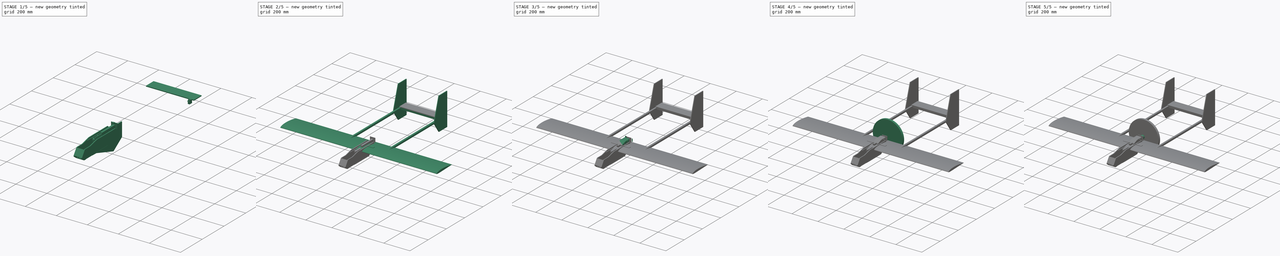
[diagram: build sequence overview — one tinted view per stage of 5, left to right]
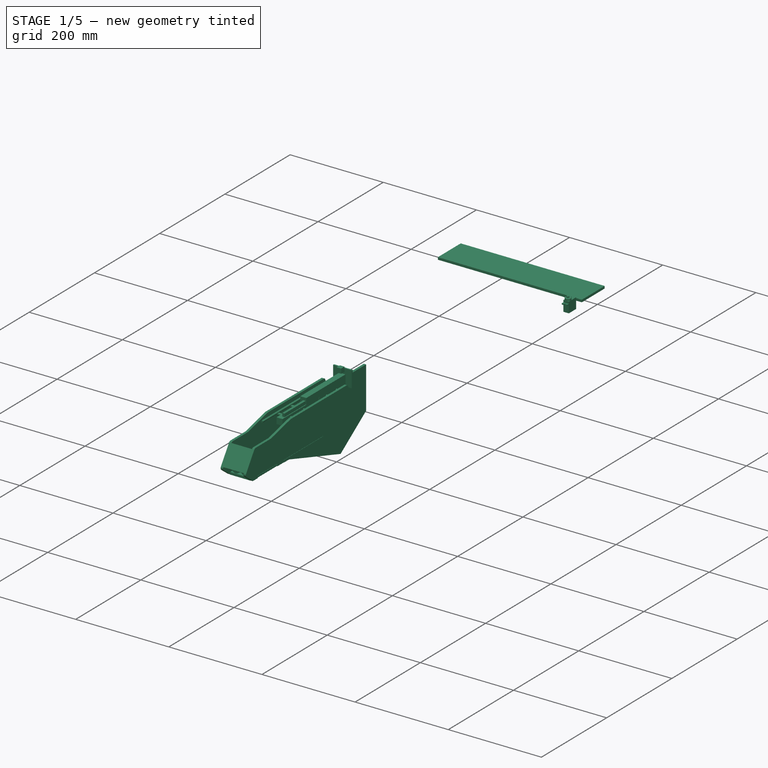
[diagram: stage 1 of 5 — iso view after this stage's code; geometry added in this stage tinted green]
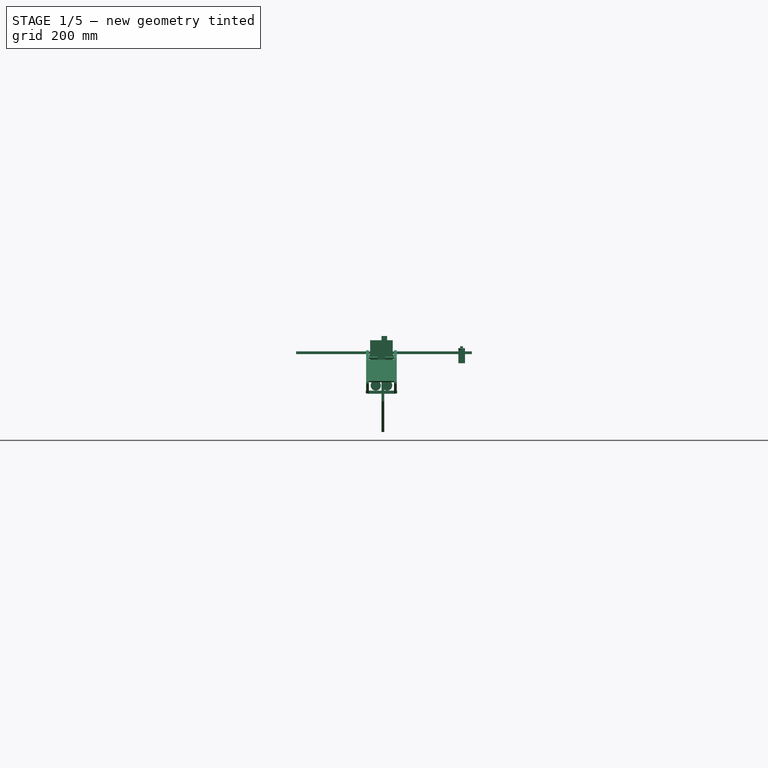
[diagram: stage 1 of 5 — front view after this stage's code; geometry added in this stage tinted green]
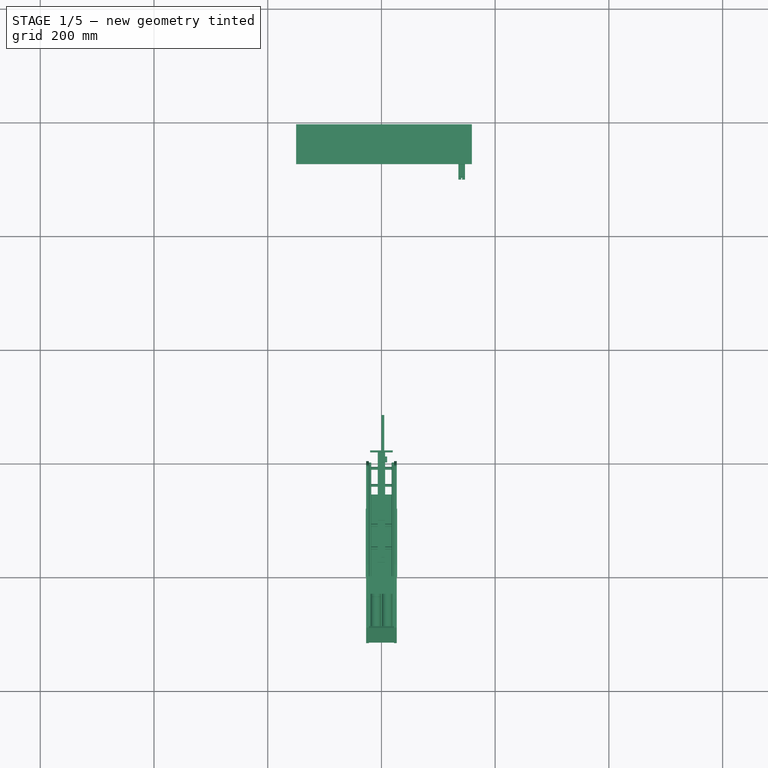
[diagram: stage 1 of 5 — top view after this stage's code; geometry added in this stage tinted green]
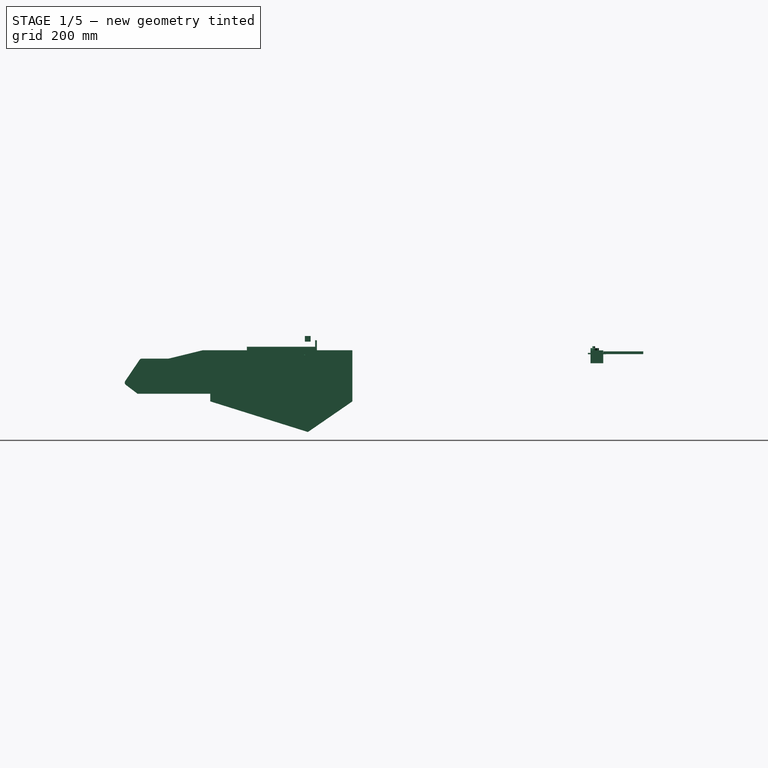
[diagram: stage 1 of 5 — right view after this stage's code; geometry added in this stage tinted green]
FCSTD DOCUMENT  (FreeCAD 0.18R4 (GitTag))
Label: MotorMount_v2
License: All rights reserved
LicenseURL: http://en.wikipedia.org/wiki/All_rights_reserved
objects: Part::Cut×87, Part::Cylinder×64, Part::Box×49, Part::FeaturePython×45, Part::Chamfer×29, Part::Fuse×21, Part::Fillet×16, Part::Mirroring×9, Part::Extrusion×6, Part::MultiFuse×5, Part::Part2DObjectPython×3, PartDesign::Body×3, Sketcher::SketchObject×2, PartDesign::Pad×1, App::Part×1, Part::Torus×1
note: 342 computed .brp shape members not serialized (recipe doc carries the construction recipe); baked Part::Feature solids carry a one-line shape summary decoded from their .brp

FEATURE [Part::Cylinder] Cylinder
  Angle = 360
  AttacherType = Attacher::AttachEngine3D
  Height = 15
  Radius = 7.5
FEATURE [Part::Box] Box001  label="Cube001"
  AttacherType = Attacher::AttachEngine3D
  Height = 10
  Length = 20
  Placement = pos=(0,-33.53,0) rot=(0,0,1;0.785398rad)
  Width = 20
FEATURE [Part::Box] Box002  label="Cube002"
  AttacherType = Attacher::AttachEngine3D
  Height = 10
  Length = 20
  Placement = pos=(0,5.35,0) rot=(0,0,1;0.785398rad)
  Width = 20
FEATURE [Part::Fuse] Fusion
  Base = -> Box002
  Tool = -> Box001
FEATURE [Part::Cut] Cut
  Base = -> Fusion
  Tool = -> Cylinder
FEATURE [Part::FeaturePython] Clone  label="Cut001"  # Draft clone (typed FeaturePython)
  AttacherType = Attacher::AttachEngine3D
  Fuse = false
  Objects = -> [Cut]
  Placement = pos=(0,0,0) rot=(0,0,1;1.5708rad)
  Scale = (1,1,1)
FEATURE [Part::Fuse] Fusion001
  Base = -> Cut
  Tool = -> Clone
FEATURE [Part::Box] Box036  label="Cube033"
  AttacherType = Attacher::AttachEngine3D
  Height = 10
  Length = 10
  Placement = pos=(0,0,15) rot=(0,0,1;0rad)
  Width = 10
FEATURE [Part::Extrusion] Extrude005
  Dir = (0,0,1)
  DirMode = 2
  FaceMakerClass = Part::FaceMakerBullseye
  LengthFwd = 5
  LengthRev = 0
  Placement = pos=(0,0,0) rot=(0.707107,0,0.707107;3.14159rad)
  Solid = true
  Symmetric = false
FEATURE [Part::Box] Box037  label="Horiz_Stabiliser"
  AttacherType = Attacher::AttachEngine3D
  Height = 5
  Length = 309
  Placement = pos=(-150,525,-7) rot=(0,0,1;0rad)
  Width = 70
FEATURE [Part::Box] Box038  label="Cube034"
  AttacherType = Attacher::AttachEngine3D
  Height = 13
  Length = 13
  Placement = pos=(-6.5,-62,-20) rot=(0,0,1;0rad)
  Width = 80
FEATURE [Part::Box] Box039  label="Cube035"
  AttacherType = Attacher::AttachEngine3D
  Height = 13
  Length = 13
  Placement = pos=(-6.5,-102,-7) rot=(0,0,1;0rad)
  Width = 120
FEATURE [Part::Fuse] Fusion019  label="Servo"
  Placement = pos=(147,502.3,-23) rot=(0,0,1;1.5708rad)
  Tool = -> Fusion001
FEATURE [Part::Cylinder] Cylinder058  label="ServoTip"
  Angle = 360
  AttacherType = Attacher::AttachEngine3D
  Height = 3.2
  Placement = pos=(141,508,3.8) rot=(0,0,1;1.5708rad)
  Radius = 2.35
FEATURE [Part::Box] Box040  label="Cube036"
  AttacherType = Attacher::AttachEngine3D
  Height = 13
  Length = 13
  Placement = pos=(-6.5,-175,-20) rot=(0,0.999965,0.008333;0rad)
  Width = 100
FEATURE [Part::Cylinder] Cylinder059  label="Cylinder058"
  Angle = 360
  AttacherType = Attacher::AttachEngine3D
  Height = 53
  Placement = pos=(-26.5,-150,-13.5) rot=(0,1,0;1.5708rad)
  Radius = 2.5
FEATURE [Part::Fuse] Fusion020
  Base = -> Box038
  Tool = -> Box039
FEATURE [Part::Fuse] Fusion021
  Base = -> Box040
  Tool = -> Fusion020
FEATURE [Part::Cylinder] Cylinder060  label="Cylinder059"
  Angle = 360
  AttacherType = Attacher::AttachEngine3D
  Height = 53
  Placement = pos=(-26.5,-110,-13.5) rot=(0,1,0;1.5708rad)
  Radius = 2.5
FEATURE [Part::Cylinder] Cylinder061  label="Cylinder060"
  Angle = 360
  AttacherType = Attacher::AttachEngine3D
  Height = 53
  Placement = pos=(-26.5,-10,-13.5) rot=(0,1,0;1.5708rad)
  Radius = 2.5
FEATURE [Part::Cylinder] Cylinder062  label="Cylinder061"
  Angle = 360
  AttacherType = Attacher::AttachEngine3D
  Height = 53
  Placement = pos=(-26.5,-40,-13.5) rot=(0,1,0;1.5708rad)
  Radius = 2.5
FEATURE [Part::Fuse] Fusion022
  Base = -> Cylinder059
  Tool = -> Cylinder060
FEATURE [Part::Fuse] Fusion023
  Base = -> Cylinder061
  Tool = -> Cylinder062
FEATURE [Part::Fuse] Fusion024
  Base = -> Fusion022
  Tool = -> Fusion023
FEATURE [Part::Cylinder] Cylinder063  label="Cylinder062"
  Angle = 360
  AttacherType = Attacher::AttachEngine3D
  Height = 200
  Placement = pos=(20,0,-9.5) rot=(1,0,0;1.5708rad)
  Radius = 2
FEATURE [Part::Cylinder] Cylinder064  label="Cylinder063"
  Angle = 360
  AttacherType = Attacher::AttachEngine3D
  Height = 200
  Placement = pos=(-20,0,-9.5) rot=(1,0,0;1.5708rad)
  Radius = 2
FEATURE [Sketcher::SketchObject] Sketch
  MapMode = 5
  Placement = pos=(0,0,0) rot=(0.57735,0.57735,0.57735;2.0944rad)
  Support = -> [YZ_Plane]
  sketch-geometry (10):
    g0: LineSegment StartX=20.4807 StartY=0 StartZ=0 EndX=-179.394 EndY=0 EndZ=0
    g1: LineSegment StartX=-179.394 StartY=0 StartZ=0 EndX=-239.434 EndY=-14.7307 EndZ=0
    g2: LineSegment StartX=-239.434 StartY=-14.7307 StartZ=0 EndX=-289.45 EndY=-14.7307 EndZ=0
    g3: LineSegment StartX=-289.45 StartY=-14.7307 StartZ=0 EndX=-318.604 EndY=-58.199 EndZ=0
    g4: LineSegment StartX=-318.604 StartY=-58.199 StartZ=0 EndX=-295.14 EndY=-75.9557 EndZ=0
    g5: LineSegment StartX=-295.14 StartY=-75.9557 StartZ=0 EndX=-56.5168 EndY=-75.9557 EndZ=0
    g6: LineSegment StartX=-56.5168 StartY=-75.9557 StartZ=0 EndX=20.4807 EndY=0 EndZ=0
    g7: GeomPoint X=20.4807 Y=0 Z=0
    g8: GeomPoint X=21.5882 Y=0 Z=0
    g9: GeomPoint X=20.4807 Y=0 Z=0
  constraints (14):
    c: PointOnObject(g0,g-1)
    c: Horizontal(g0)
    c: Coincident(g0,g1)
    c: Coincident(g1,g2)
    c: Horizontal(g2)
    c: Coincident(g2,g3)
    c: Coincident(g3,g4)
    c: Coincident(g4,g5)
    c: Horizontal(g5)
    c: Coincident(g5,g6)
    c: Coincident(g7,g6)
    c: PointOnObject(g8,g-1)
    c: Coincident(g9,g0)
    c: Coincident(g0,g6)
FEATURE [PartDesign::Body] Body
  Group = -> [Sketch]
  Origin = -> Origin
FEATURE [Sketcher::SketchObject] Sketch001
  MapMode = 5
  Placement = pos=(0,0,0) rot=(0.57735,0.57735,0.57735;2.0944rad)
  Support = -> [YZ_Plane001]
  sketch-geometry (10):
    g0: LineSegment StartX=20.4807 StartY=0 StartZ=0 EndX=-179.394 EndY=0 EndZ=0
    g1: LineSegment StartX=-179.394 StartY=0 StartZ=0 EndX=-239.434 EndY=-14.7307 EndZ=0
    g2: LineSegment StartX=-239.434 StartY=-14.7307 StartZ=0 EndX=-289.45 EndY=-14.7307 EndZ=0
    g3: LineSegment StartX=-289.45 StartY=-14.7307 StartZ=0 EndX=-318.604 EndY=-58.199 EndZ=0
    g4: LineSegment StartX=-318.604 StartY=-58.199 StartZ=0 EndX=-295.14 EndY=-75.9557 EndZ=0
    g5: LineSegment StartX=-295.14 StartY=-75.9557 StartZ=0 EndX=-56.5168 EndY=-75.9557 EndZ=0
    g6: LineSegment StartX=-56.5168 StartY=-75.9557 StartZ=0 EndX=20.4807 EndY=0 EndZ=0
    g7: GeomPoint X=20.4807 Y=0 Z=0
    g8: GeomPoint X=21.5882 Y=0 Z=0
    g9: GeomPoint X=20.4807 Y=0 Z=0
  constraints (14):
    c: PointOnObject(g0,g-1)
    c: Horizontal(g0)
    c: Coincident(g0,g1)
    c: Coincident(g1,g2)
    c: Horizontal(g2)
    c: Coincident(g2,g3)
    c: Coincident(g3,g4)
    c: Coincident(g4,g5)
    c: Horizontal(g5)
    c: Coincident(g5,g6)
    c: Coincident(g7,g6)
    c: PointOnObject(g8,g-1)
    c: Coincident(g9,g0)
    c: Coincident(g0,g6)
FEATURE [PartDesign::Body] Body001  label="Shape"
  Group = -> [Sketch001]
  Origin = -> Origin001
FEATURE [Part::Box] Box041  label="Cube037"
  AttacherType = Attacher::AttachEngine3D
  Height = 5
  Length = 55
  Placement = pos=(-27.5,-200,-76) rot=(0,0,1;0rad)
  Width = 120
FEATURE [Part::Box] Box042  label="Cube038"
  AttacherType = Attacher::AttachEngine3D
  Height = 5
  Length = 55
  Placement = pos=(-27.5,-200,-76) rot=(0,0,1;0rad)
  Width = 120
FEATURE [Part::Box] Box045  label="Cube041"
  AttacherType = Attacher::AttachEngine3D
  Height = 5
  Length = 55
  Placement = pos=(-27.5,-280,-76) rot=(0,0,1;0rad)
  Width = 60
FEATURE [PartDesign::Pad] Pad
  Length = 5
  Length2 = 100
  Placement = pos=(0,0,0) rot=(0.57735,0.57735,0.57735;2.0944rad)
  Profile = -> Sketch
  Type = 0
FEATURE [PartDesign::Body] Body002
  Group = -> [Pad]
  Origin = -> Origin003
  Tip = -> Pad
FEATURE [App::Part] Part
  Group = -> [Body002]
  Origin = -> Origin002
  Placement = pos=(20,0,0) rot=(0,0,1;0rad)
FEATURE [Part::Chamfer] Chamfer028  label="Chamfer040"
  Base = -> Pad
  Edges = 1 edges r=25: [Edge1]
  Placement = pos=(22,0,0) rot=(0,0,1;0rad)
FEATURE [Part::Fillet] Fillet005
  Base = -> Chamfer028
  Edges = 1 edges r=5: [Edge24]
FEATURE [Part::Fillet] Fillet007
  Base = -> Fillet005
  Edges = 1 edges r=5: [Edge11]
FEATURE [Part::Fillet] Fillet009
  Base = -> Fillet007
  Edges = 1 edges r=5: [Edge18]
FEATURE [Part::Fillet] Fillet012
  Base = -> Fillet009
  Edges = 1 edges r=5: [Edge19]
FEATURE [Part::Fillet] Fillet013
  Base = -> Fillet012
  Edges = 1 edges r=5: [Edge20]
FEATURE [Part::Fillet] Fillet015
  Base = -> Fillet013
  Edges = 1 edges r=5: [Edge25]
FEATURE [Part::Cut] Cut075  label="Cut076"
  Base = -> Fillet015
  Tool = -> Box042
FEATURE [Part::Cut] Cut078  label="Cut079"
  Base = -> Cut075
  Tool = -> Box045
FEATURE [Part::Chamfer] Chamfer029  label="Chamfer041"
  Base = -> Pad
  Edges = 1 edges r=25: [Edge1]
  Placement = pos=(-27,0,0) rot=(0,0,1;0rad)
FEATURE [Part::Fillet] Fillet006
  Base = -> Chamfer029
  Edges = 1 edges r=5: [Edge24]
FEATURE [Part::Fillet] Fillet008
  Base = -> Fillet006
  Edges = 1 edges r=5: [Edge11]
FEATURE [Part::Fillet] Fillet010
  Base = -> Fillet008
  Edges = 1 edges r=5: [Edge18]
FEATURE [Part::Fillet] Fillet011
  Base = -> Fillet010
  Edges = 1 edges r=5: [Edge19]
FEATURE [Part::Fillet] Fillet014
  Base = -> Fillet011
  Edges = 1 edges r=5: [Edge20]
FEATURE [Part::Cut] Cut082  label="Fuselage_L_F"
  Base = -> Cut075
  Placement = pos=(-49,0,0) rot=(0,0,1;0rad)
  Tool = -> Box045
FEATURE [Part::Box] Box046  label="Cube042"
  AttacherType = Attacher::AttachEngine3D
  Height = 4.95
  Length = 50
  Placement = pos=(-25,-295,-74.5) rot=(0,0,1;0rad)
  Width = 240
FEATURE [Part::Cut] Cut083  label="Cut084"
  Base = -> Cut075
  Placement = pos=(-49,0,1) rot=(0,0,1;0rad)
  Tool = -> Box045
FEATURE [Part::Cut] Cut084  label="Cut085"
  Base = -> Cut075
  Tool = -> Box045
FEATURE [Part::Cut] Cut085  label="Cut086"
  Base = -> Box046
  Tool = -> Cut083
FEATURE [Part::Cut] Cut076  label="Fuselage_R_F"
  Base = -> Cut075
  Tool = -> Box045
FEATURE [Part::Box] Box047  label="Cube043"
  AttacherType = Attacher::AttachEngine3D
  Height = 5
  Length = 60
  Placement = pos=(-30,-304,-44) rot=(1,0,0;0.977384rad)
  Width = 25
FEATURE [Part::Cut] Cut086  label="Fuselage_B_F"
  Base = -> Cut085
  Placement = pos=(0,0,-2) rot=(0,0,1;0rad)
  Tool = -> Cut084
FEATURE [Part::Cut] Cut087
  Base = -> Cut076
  Tool = -> Box047
FEATURE [Part::Box] Box049  label="Cube045"
  AttacherType = Attacher::AttachEngine3D
  Height = 5
  Length = 60
  Placement = pos=(-30,-304,-44) rot=(1,0,0;0.977384rad)
  Width = 25
FEATURE [Part::Cut] Cut088
  Base = -> Cut082
  Tool = -> Box049
FEATURE [Part::Box] Box050  label="Cube046"
  AttacherType = Attacher::AttachEngine3D
  Height = 4
  Length = 53
  Placement = pos=(-26.5,-312.5,-56.4) rot=(1,0,0;0.980002rad)
  Width = 45
FEATURE [Part::Cut] Cut089
  Base = -> Cut076
  Tool = -> Box047
FEATURE [Part::Cut] Cut090
  Base = -> Cut082
  Tool = -> Box049
FEATURE [Part::Cut] Cut091
  Base = -> Box050
  Tool = -> Cut089
FEATURE [Part::Cut] Cut092
  Base = -> Cut091
  Tool = -> Cut090
FEATURE [Part::Box] Box051  label="Cube047"
  AttacherType = Attacher::AttachEngine3D
  Height = 35
  Length = 40
  Placement = pos=(-20,18,-17.5) rot=(0,0,1;0rad)
  Width = 3
FEATURE [Part::Cylinder] Cylinder065  label="Cylinder064"
  Angle = 360
  AttacherType = Attacher::AttachEngine3D
  Height = 65
  Radius = 9
FEATURE [Part::Torus] Torus
  Angle1 = -180
  Angle2 = 180
  Angle3 = 360
  AttacherType = Attacher::AttachEngine3D
  Placement = pos=(0,0,60) rot=(0,0,1;0rad)
  Radius1 = 9.5
  Radius2 = 0.75
FEATURE [Part::Cut] Cut093  label="18650_0"
  Base = -> Cylinder065
  Placement = pos=(10,-230,-62) rot=(1,0,0;1.5708rad)
  Tool = -> Torus
FEATURE [Part::Cut] Cut094  label="18650_1"
  Base = -> Cylinder065
  Placement = pos=(-10,-295,-62) rot=(-1,0,0;1.5708rad)
  Tool = -> Torus
FEATURE [Part::Fuse] Fusion025
  Base = -> Box040
  Tool = -> Fusion020
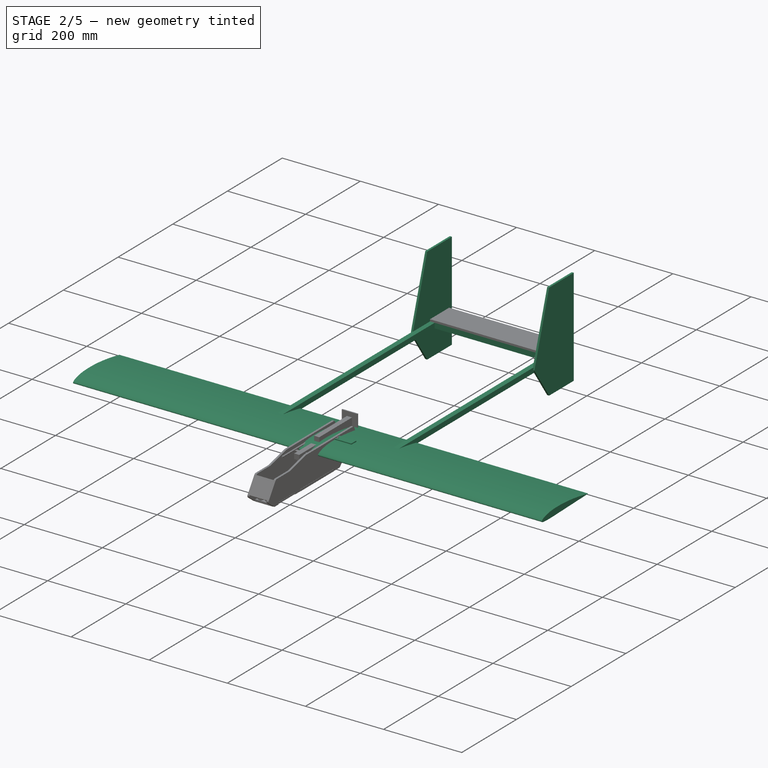
[diagram: stage 2 of 5 — iso view after this stage's code; geometry added in this stage tinted green]
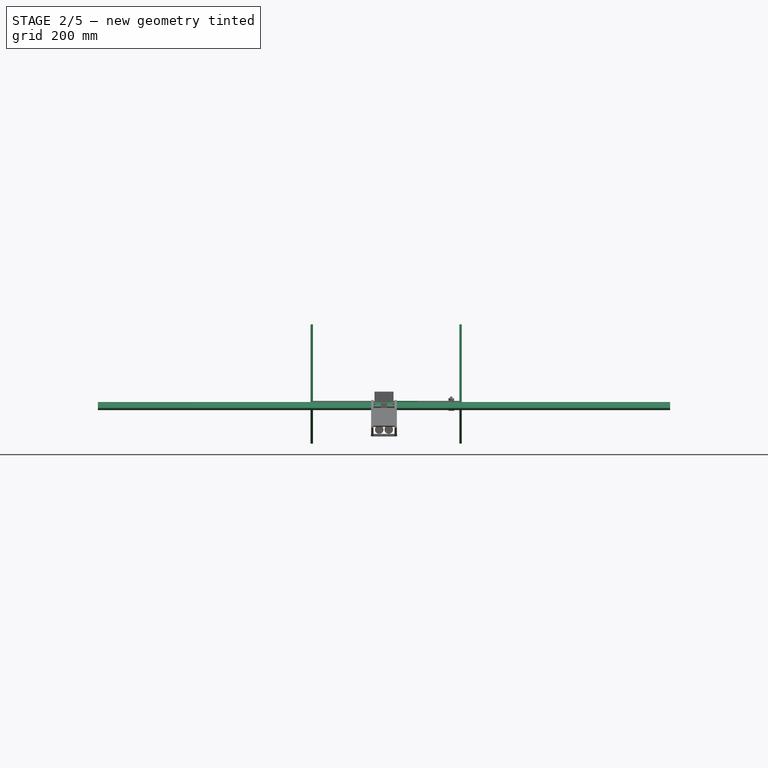
[diagram: stage 2 of 5 — front view after this stage's code; geometry added in this stage tinted green]
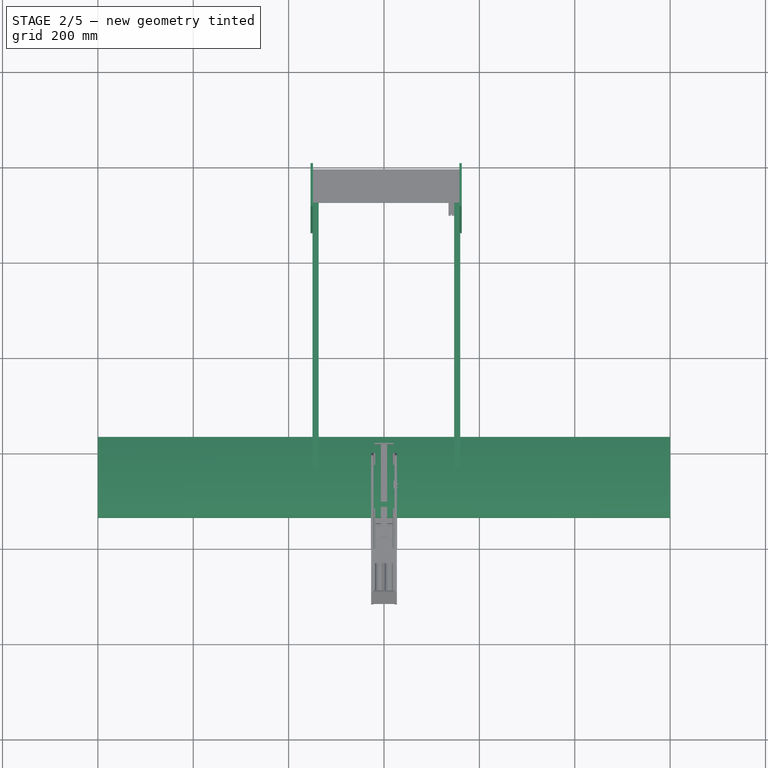
[diagram: stage 2 of 5 — top view after this stage's code; geometry added in this stage tinted green]
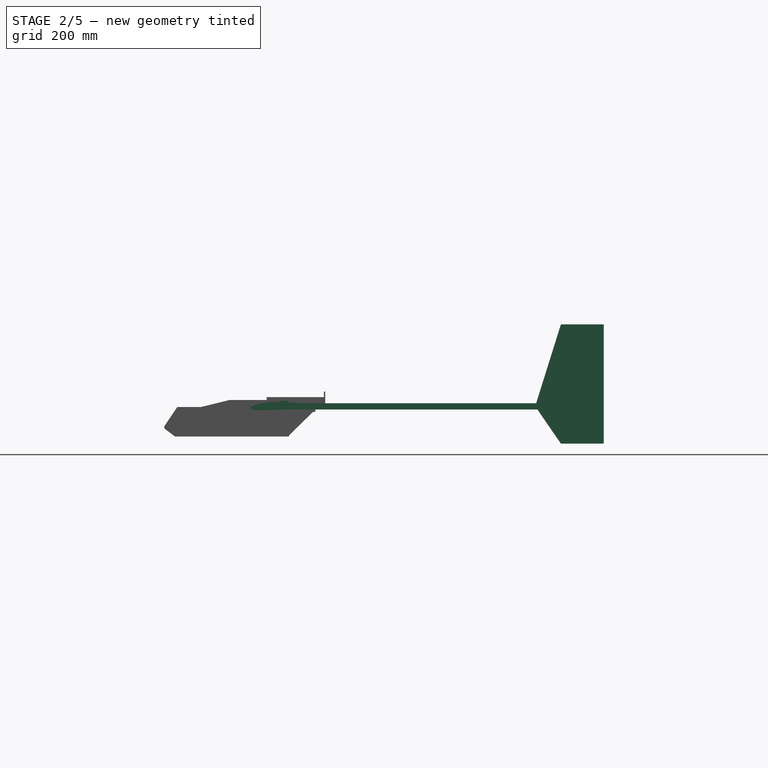
[diagram: stage 2 of 5 — right view after this stage's code; geometry added in this stage tinted green]
FEATURE [Part::Box] Box003  label="Frame"
  AttacherType = Attacher::AttachEngine3D
  Height = 13
  Length = 600
  Placement = pos=(-300,-75,-20) rot=(0,0,1;0rad)
  Width = 13
FEATURE [Part::Box] Box006  label="Cube005"
  AttacherType = Attacher::AttachEngine3D
  Height = 18
  Length = 50
  Placement = pos=(20,-75,-20) rot=(0,0,1;0rad)
  Width = 18
FEATURE [Part::Box] Box007  label="Frame_Front"
  AttacherType = Attacher::AttachEngine3D
  Height = 13
  Length = 600
  Placement = pos=(-300,-75,-20) rot=(0,0,1;0rad)
  Width = 13
FEATURE [Part::Cut] Cut036  label="Cut039"
  Base = -> Box006
  Tool = -> Box003
FEATURE [Part::Box] Box009  label="Cube006"
  AttacherType = Attacher::AttachEngine3D
  Height = 10
  Length = 15
  Placement = pos=(17,-60,-16.5) rot=(0,0,1;0rad)
  Width = 15
FEATURE [Part::Chamfer] Chamfer015
  Base = -> Box009
  Edges = 1 edges r=13: [Edge7]
FEATURE [Part::FeaturePython] Connect004  # WARN: FeaturePython — macro-defined, semantics opaque (R4)
  Objects = -> [Cut036,Chamfer015]
  Tolerance = 0
FEATURE [Part::Cylinder] Cylinder049  label="Cylinder048"
  Angle = 360
  AttacherType = Attacher::AttachEngine3D
  Height = 10
  Placement = pos=(30,-68.5,-8) rot=(0,0,1;0rad)
  Radius = 3
FEATURE [Part::Cylinder] Cylinder050  label="Cylinder049"
  Angle = 360
  AttacherType = Attacher::AttachEngine3D
  Height = 10
  Placement = pos=(55,-53,-13.5) rot=(1,0,0;1.5708rad)
  Radius = 3
FEATURE [Part::Cut] Cut038  label="Cut041"
  Base = -> Connect004
  Tool = -> Cylinder049
FEATURE [Part::Cut] Cut039  label="Cut042"
  Base = -> Cut038
  Tool = -> Cylinder050
FEATURE [Part::Box] Box010  label="Cube007"
  AttacherType = Attacher::AttachEngine3D
  Height = 13
  Length = 13
  Placement = pos=(147,-62,-20) rot=(0,0,1;0rad)
  Width = 600
FEATURE [Part::Box] Box011  label="Cube008"
  AttacherType = Attacher::AttachEngine3D
  Height = 13
  Length = 13
  Placement = pos=(-150,-62,-20) rot=(0,0,1;0rad)
  Width = 600
FEATURE [Part::FeaturePython] Connect006  # WARN: FeaturePython — macro-defined, semantics opaque (R4)
  Objects = -> [Box010,Box011,Box007]
  Tolerance = 0
FEATURE [Part::Box] Box012  label="Cube009"
  AttacherType = Attacher::AttachEngine3D
  Height = 25
  Length = 13
  Placement = pos=(0,-2,0) rot=(0,0,1;0rad)
  Width = 15
FEATURE [Part::Part2DObjectPython] Clone2D001  label="Wire (2D) (2D)"  # Draft 2D object (typed FeaturePython)
  Fuse = false
  Placement = pos=(-60,2.5,0) rot=(0,0,1;0rad)
  Scale = (1,1.2,1)
FEATURE [Part::Extrusion] Extrude
  Base = -> Clone2D001
  Dir = (0,0,1)
  DirMode = 2
  FaceMakerClass = Part::FaceMakerBullseye
  LengthFwd = 20
  LengthRev = 0
  Placement = pos=(0,0.4,0) rot=(0,0,1;0rad)
  Solid = false
  Symmetric = false
FEATURE [Part::Cut] Cut040  label="Cut043"
  Base = -> Extrude
  Tool = -> Box012
FEATURE [Part::Box] Box013  label="Cube010"
  AttacherType = Attacher::AttachEngine3D
  Height = 20
  Length = 10
  Width = 10
FEATURE [Part::Cylinder] Cylinder051
  Angle = 360
  AttacherType = Attacher::AttachEngine3D
  Height = 120
  Placement = pos=(-4.5,6.5,0) rot=(0,0,1;0rad)
  Radius = 2.7
FEATURE [Part::Box] Box014  label="Cube011"
  AttacherType = Attacher::AttachEngine3D
  Height = 15
  Length = 4
  Placement = pos=(-4,0,20) rot=(0,0,1;0rad)
  Width = 13
FEATURE [Part::Cylinder] Cylinder052
  Angle = 360
  AttacherType = Attacher::AttachEngine3D
  Height = 20
  Placement = pos=(35,9,0) rot=(0,0,1;0rad)
  Radius = 2.7
FEATURE [Part::Box] Box015  label="Cube012"
  AttacherType = Attacher::AttachEngine3D
  Height = 10
  Length = 10
  Placement = pos=(-14,0,20) rot=(0,0,1;0rad)
  Width = 2.5
FEATURE [Part::Chamfer] Chamfer018
  Base = -> Box015
  Edges = 1 edges r=9.99: [Edge2]
FEATURE [Part::FeaturePython] Clone009  label="Chamfer006"  # Draft clone (typed FeaturePython)
  AttacherType = Attacher::AttachEngine3D
  Fuse = false
  Objects = -> [Chamfer018]
  Placement = pos=(-1.5,11.5,0) rot=(0,0,1;0rad)
  Scale = (0.6,0.6,1)
FEATURE [Part::Box] Box016  label="Cube013"
  AttacherType = Attacher::AttachEngine3D
  Height = 0.1
  Length = 0.1
  Placement = pos=(-5,45,0) rot=(0,0,1;0rad)
  Width = 0.1
FEATURE [Part::Chamfer] Chamfer017
  Base = -> Box013
  Edges = 1 edges r=9.99: [Edge7]
FEATURE [Part::FeaturePython] Clone006  label="Chamfer019"  # Draft clone (typed FeaturePython)
  AttacherType = Attacher::AttachEngine3D
  Fuse = false
  Objects = -> [Chamfer017]
  Placement = pos=(-32,2.5,0) rot=(0,0,1;0rad)
  Scale = (-2,0.8,1)
FEATURE [Part::FeaturePython] Clone008  label="Chamfer021"  # Draft clone (typed FeaturePython)
  AttacherType = Attacher::AttachEngine3D
  Fuse = false
  Objects = -> [Clone006]
  Placement = pos=(-30,2.5,0) rot=(0,0,1;0rad)
  Scale = (-1,1,1)
FEATURE [Part::FeaturePython] Clone005  label="Chamfer004"  # Draft clone (typed FeaturePython)
  AttacherType = Attacher::AttachEngine3D
  Fuse = false
  Objects = -> [Clone008]
  Placement = pos=(15,2.5,0) rot=(0,0,1;0rad)
  Scale = (1.3,1.2,1)
FEATURE [Part::FeaturePython] Clone007  label="Chamfer020"  # Draft clone (typed FeaturePython)
  AttacherType = Attacher::AttachEngine3D
  Fuse = false
  Objects = -> [Clone008]
  Placement = pos=(-10,10.5,0) rot=(0,0,1;0rad)
  Scale = (-0.8,-0.7,1)
FEATURE [Part::Cut] Cut043  label="Cut046"
  Base = -> Cut040
  Tool = -> Clone007
FEATURE [Part::Cut] Cut041  label="Cut044"
  Base = -> Cut043
  Tool = -> Clone008
FEATURE [Part::Cut] Cut044  label="Cut047"
  Base = -> Cut041
  Tool = -> Clone006
FEATURE [Part::Cut] Cut045  label="Cut048"
  Base = -> Cut044
  Tool = -> Clone005
FEATURE [Part::FeaturePython] Embed  # WARN: FeaturePython — macro-defined, semantics opaque (R4)
  Base = -> Box014
  Tolerance = 0
  Tool = -> Cut045
FEATURE [Part::Cut] Cut042  label="Cut045"
  Base = -> Embed
  Tool = -> Cylinder051
FEATURE [Part::Cut] Cut046  label="Cut049"
  Base = -> Cut042
  Tool = -> Cylinder052
FEATURE [Part::FeaturePython] Embed001  # WARN: FeaturePython — macro-defined, semantics opaque (R4)
  Base = -> Clone009
  Tolerance = 0
  Tool = -> Cut046
FEATURE [Part::FeaturePython] Embed002  label="Airfoil"  # WARN: FeaturePython — macro-defined, semantics opaque (R4)
  Base = -> Chamfer018
  Placement = pos=(0,1,0) rot=(0,0,1;1.5708rad)
  Tolerance = 0
  Tool = -> Embed001
FEATURE [Part::FeaturePython] Connect007  # WARN: FeaturePython — macro-defined, semantics opaque (R4)
  Objects = -> [Embed002,Box016]
  Placement = pos=(-157,-76,-20) rot=(0,1,0;1.5708rad)
  Tolerance = 0
FEATURE [Part::Mirroring] Part__Mirroring005  label="Connect007 (Mirror #6)"
  Base = (0,0,0)
  Normal = (1,0,0)
  Placement = pos=(10,0,0) rot=(0,0,1;0rad)
  Source = -> Connect007
FEATURE [Part::Cylinder] Cylinder057
  Angle = 360
  AttacherType = Attacher::AttachEngine3D
  Height = 60
  Placement = pos=(-25,-79.5,-13.5) rot=(0,1,0;1.5708rad)
  Radius = 2.7
FEATURE [Part::Box] Box031  label="Cube028"
  AttacherType = Attacher::AttachEngine3D
  Height = 10
  Length = 20
  Placement = pos=(-10,-60,-25) rot=(0,0,1;0rad)
  Width = 60
FEATURE [Part::Chamfer] Chamfer024  label="Chamfer037"
  Base = -> Box031
  Edges = 1 edges: [Edge10 r1=5 r2=10]
FEATURE [Part::Chamfer] Chamfer025  label="Chamfer038"
  Base = -> Chamfer024
  Edges = 2 edges r=5: [Edge4,Edge14]
FEATURE [Part::FeaturePython] Connect012  # WARN: FeaturePython — macro-defined, semantics opaque (R4)
  Objects = -> [Embed002,Box016]
  Placement = pos=(-290,-76,-20) rot=(0,1,0;1.5708rad)
  Tolerance = 0
FEATURE [Part::FeaturePython] Connect013  # WARN: FeaturePython — macro-defined, semantics opaque (R4)
  Objects = -> [Box010,Box011,Box007]
  Tolerance = 0
FEATURE [Part::Cut] Cut067  label="Cut070"
  Base = -> Part__Mirroring005
  Tool = -> Connect013
FEATURE [Part::Box] Box032  label="Cube029"
  AttacherType = Attacher::AttachEngine3D
  Height = 200
  Length = 12
  Placement = pos=(-165,-150,-60) rot=(0,0,1;0rad)
  Width = 200
FEATURE [Part::FeaturePython] Connect014  # WARN: FeaturePython — macro-defined, semantics opaque (R4)
  Objects = -> [Box010,Box011,Box007]
  Tolerance = 0
FEATURE [Part::Cut] Cut068  label="Cut071"
  Base = -> Connect007
  Tool = -> Connect006
FEATURE [Part::Mirroring] Part__Mirroring007  label="Cube029 (Mirror #8)"
  Base = (0,0,0)
  Normal = (1,0,0)
  Placement = pos=(10,0,0) rot=(0,0,1;0rad)
  Source = -> Box032
FEATURE [Part::Cut] Cut069  label="Cut072"
  Base = -> Cut068
  Tool = -> Box032
FEATURE [Part::Cut] Cut070  label="Cut073"
  Base = -> Cut067
  Tool = -> Part__Mirroring007
FEATURE [Part::Box] Box033  label="Cube030"
  AttacherType = Attacher::AttachEngine3D
  Height = 30
  Length = 10
  Placement = pos=(-150,-140,-20) rot=(0,0,1;0rad)
  Width = 60
FEATURE [Part::Chamfer] Chamfer027  label="Chamfer039"
  Base = -> Box033
  Edges = 1 edges: [Edge9 r1=5 r2=15]
FEATURE [Part::Mirroring] Part__Mirroring008  label="Chamfer039 (Mirror #9)"
  Base = (5,0,0)
  Normal = (1,0,0)
  Source = -> Chamfer027
FEATURE [Part::Cut] Cut071  label="Cut074"
  Base = -> Cut069
  Tool = -> Chamfer027
FEATURE [Part::Cut] Cut072  label="Cut075"
  Base = -> Cut070
  Tool = -> Part__Mirroring008
FEATURE [Part::Extrusion] Extrude003  label="Wing"
  Dir = (0,0,1)
  DirMode = 2
  FaceMakerClass = Part::FaceMakerBullseye
  LengthFwd = 1200
  LengthRev = 0
  Placement = pos=(-600,-1,-0.4) rot=(0,1,0;1.5708rad)
  Solid = false
  Symmetric = false
FEATURE [Part::Box] Box034  label="Cube031"
  AttacherType = Attacher::AttachEngine3D
  Height = 13
  Length = 284
  Placement = pos=(-137,525,-20) rot=(0,0,1;0rad)
  Width = 13
FEATURE [Part::FeaturePython] Connect015  label="Frame_Full"  # WARN: FeaturePython — macro-defined, semantics opaque (R4)
  Objects = -> [Connect014,Box034]
  Tolerance = 0
FEATURE [Part::Extrusion] Extrude004
  Dir = (0,0,1)
  DirMode = 2
  FaceMakerClass = Part::FaceMakerBullseye
  LengthFwd = 5
  LengthRev = 0
  Placement = pos=(0,0,0) rot=(0.707107,0,0.707107;3.14159rad)
  Solid = true
  Symmetric = false
FEATURE [Part::Box] Box035  label="Cube032"
  AttacherType = Attacher::AttachEngine3D
  Height = 10
  Length = 10
  Placement = pos=(0,0,15) rot=(0,0,1;0rad)
  Width = 10
FEATURE [Part::Cut] Cut073  label="Vert_Stabiliser_R"
  Base = -> Extrude004
  Placement = pos=(-154,605,-8) rot=(-1,0,0;1.5708rad)
  Tool = -> Box035
FEATURE [Part::Cut] Cut074  label="Vert_Stabiliser_L"
  Base = -> Extrude005
  Placement = pos=(158,605,-8) rot=(-1,0,0;1.5708rad)
  Tool = -> Box036
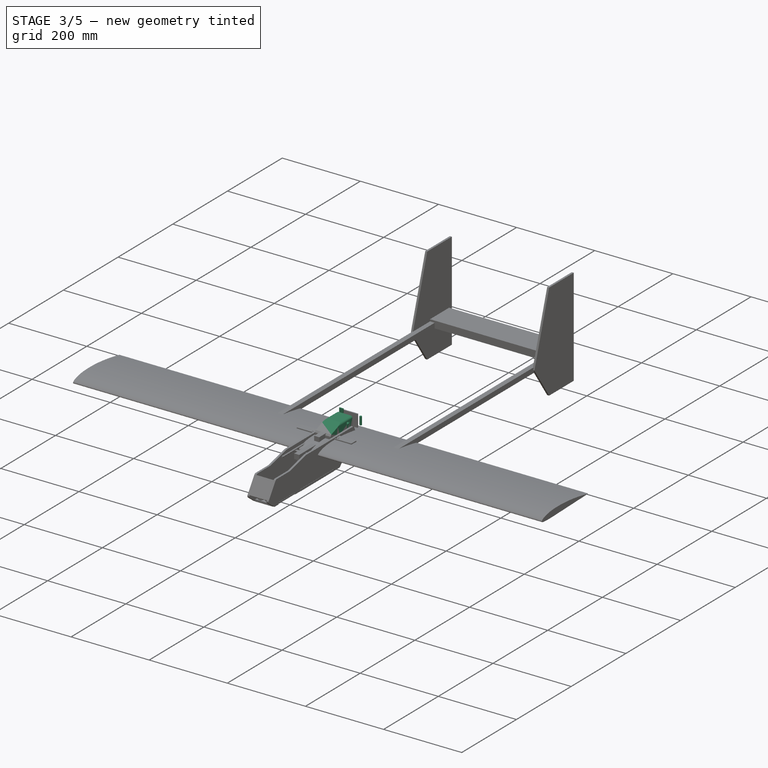
[diagram: stage 3 of 5 — iso view after this stage's code; geometry added in this stage tinted green]
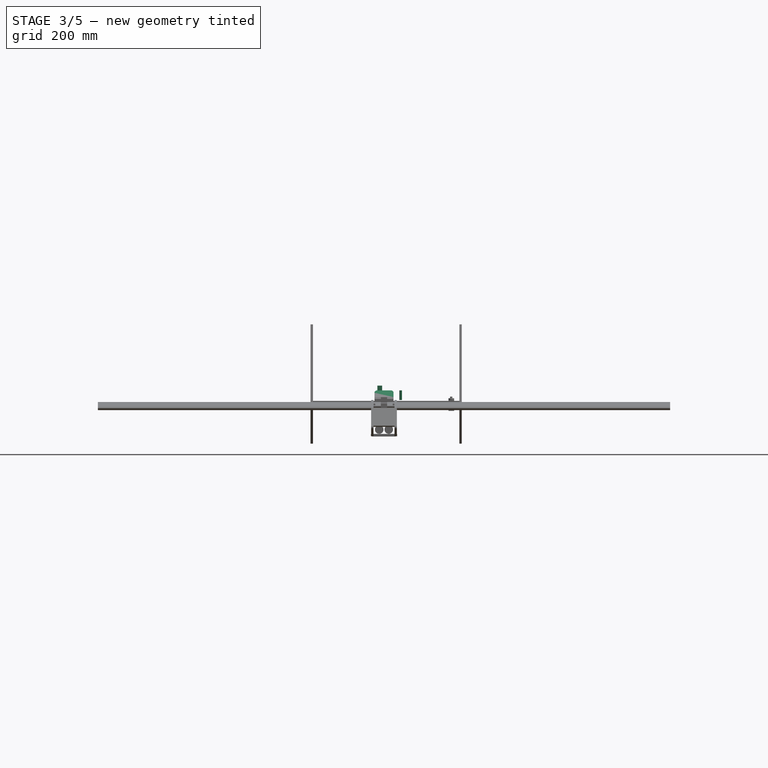
[diagram: stage 3 of 5 — front view after this stage's code; geometry added in this stage tinted green]
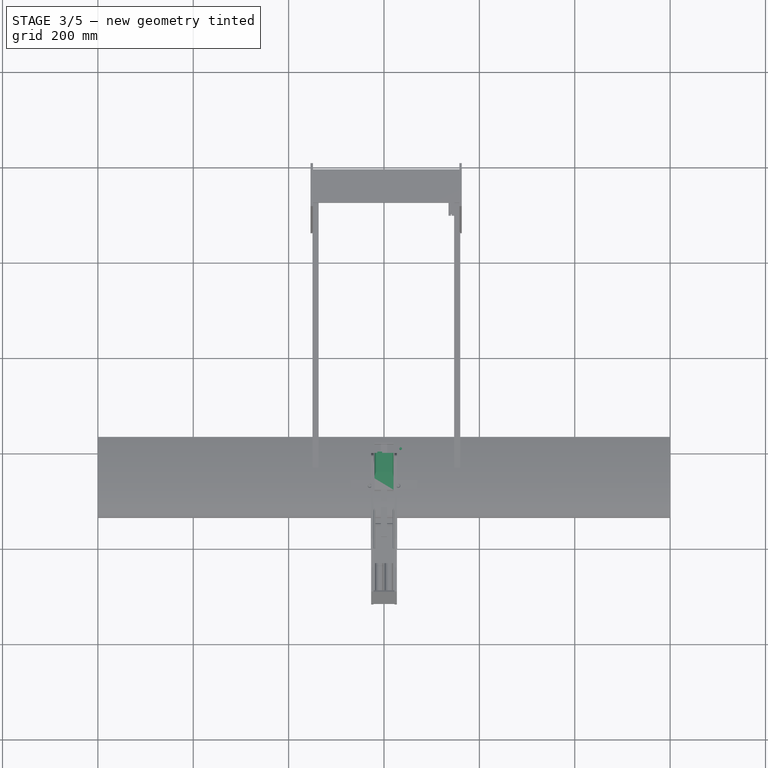
[diagram: stage 3 of 5 — top view after this stage's code; geometry added in this stage tinted green]
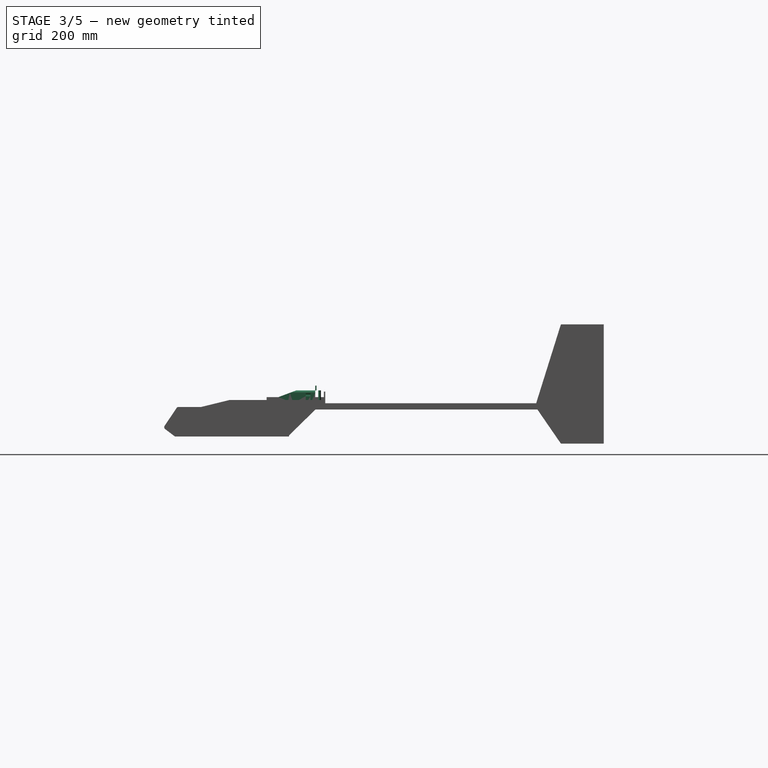
[diagram: stage 3 of 5 — right view after this stage's code; geometry added in this stage tinted green]
FEATURE [Part::Box] Box004  label="Cube003"
  AttacherType = Attacher::AttachEngine3D
  Height = 40
  Length = 40
  Placement = pos=(-20,-80,-20) rot=(0,0,1;0rad)
  Width = 80
FEATURE [Part::Box] Box005  label="Cube004"
  AttacherType = Attacher::AttachEngine3D
  Height = 6
  Length = 12
  Placement = pos=(5,0,8) rot=(0,0,1;0rad)
  Width = 10
FEATURE [Part::Chamfer] Chamfer013
  Base = -> Box005
  Edges = 2 edges r=1.6: [Edge2,Edge4]
  Placement = pos=(3,-20,0) rot=(0,0,1;0rad)
FEATURE [Part::Mirroring] Part__Mirroring  label="Chamfer013 (Mirror #1)"
  Base = (0,0,0)
  Normal = (1,0,0)
  Source = -> Chamfer013
FEATURE [Part::MultiFuse] Fusion012
  Shapes = -> [Part__Mirroring,Chamfer013]
FEATURE [Part::Mirroring] Part__Mirroring001  label="Fusion012 (Mirror #2)"
  Base = (0,0,0)
  Normal = (0,0,1)
  Source = -> Fusion012
FEATURE [Part::MultiFuse] Fusion013
  Shapes = -> [Part__Mirroring001,Fusion012]
FEATURE [Part::Cut] Cut034  label="Cut037"
  Base = -> Box004
  Tool = -> Fusion013
FEATURE [Part::Cylinder] Cylinder047  label="Cylinder046"
  Angle = 360
  AttacherType = Attacher::AttachEngine3D
  Height = 30
  Placement = pos=(11.25,0,11.25) rot=(1,0,0;1.5708rad)
  Radius = 2
FEATURE [Part::Mirroring] Part__Mirroring002  label="Cylinder046 (Mirror #3)"
  Base = (0,0,0)
  Normal = (0,0,1)
  Source = -> Cylinder047
FEATURE [Part::Fuse] Fusion014
  Base = -> Cylinder047
  Tool = -> Part__Mirroring002
FEATURE [Part::Cylinder] Cylinder048  label="Cylinder047"
  Angle = 360
  AttacherType = Attacher::AttachEngine3D
  Height = 30
  Placement = pos=(11.25,0,11.25) rot=(1,0,0;1.5708rad)
  Radius = 2
FEATURE [Part::Mirroring] Part__Mirroring003  label="Cylinder046 (Mirror #3)001"
  Base = (0,0,0)
  Normal = (0,0,1)
  Source = -> Cylinder048
FEATURE [Part::Fuse] Fusion015
  Base = -> Cylinder048
  Placement = pos=(0,0,0) rot=(0,1,0;3.14159rad)
  Tool = -> Part__Mirroring003
FEATURE [Part::MultiFuse] Fusion016
  Shapes = -> [Fusion015,Fusion014]
FEATURE [Part::Cut] Cut035  label="Cut038"
  Base = -> Cut034
  Tool = -> Fusion016
FEATURE [Part::Chamfer] Chamfer014
  Base = -> Cut035
  Edges = 1 edges: [Edge15 r1=15 r2=40]
FEATURE [Part::Box] Box008  label="Frame002"
  AttacherType = Attacher::AttachEngine3D
  Height = 13
  Length = 600
  Placement = pos=(-300,-75,-20) rot=(0,0,1;0rad)
  Width = 13
FEATURE [Part::Cut] Cut037  label="Cut040"
  Base = -> Chamfer014
  Tool = -> Box008
FEATURE [Part::Fillet] Fillet004
  Base = -> Cut037
  Edges = 2 edges r=5: [Edge2,Edge22]
FEATURE [Part::Chamfer] Chamfer016
  Base = -> Cut039
  Edges = 2 edges r=1.5: [Edge5,Edge20]
FEATURE [Part::Mirroring] Part__Mirroring004  label="Chamfer016 (Mirror #5)"
  Base = (0,0,0)
  Normal = (1,0,0)
  Source = -> Chamfer016
FEATURE [Part::Fuse] Fusion017
  Base = -> Chamfer016
  Tool = -> Part__Mirroring004
FEATURE [Part::Cylinder] Cylinder054
  Angle = 360
  AttacherType = Attacher::AttachEngine3D
  Height = 20
  Placement = pos=(35,9,0) rot=(0,0,1;0rad)
  Radius = 2.7
FEATURE [Part::Box] Box021  label="Cube018"
  AttacherType = Attacher::AttachEngine3D
  Height = 10
  Length = 10
  Placement = pos=(-14,0,20) rot=(0,0,1;0rad)
  Width = 2.5
FEATURE [Part::Box] Box022  label="Cube019"
  AttacherType = Attacher::AttachEngine3D
  Height = 25
  Length = 13
  Placement = pos=(0,-2,0) rot=(0,0,1;0rad)
  Width = 15
FEATURE [Part::Cylinder] Cylinder055
  Angle = 360
  AttacherType = Attacher::AttachEngine3D
  Height = 20
  Placement = pos=(35,9,0) rot=(0,0,1;0rad)
  Radius = 2.7
FEATURE [Part::Box] Box023  label="Cube020"
  AttacherType = Attacher::AttachEngine3D
  Height = 15
  Length = 4
  Placement = pos=(-4,0,20) rot=(0,0,1;0rad)
  Width = 13
FEATURE [Part::Box] Box024  label="Cube021"
  AttacherType = Attacher::AttachEngine3D
  Height = 10
  Length = 10
  Placement = pos=(-14,0,20) rot=(0,0,1;0rad)
  Width = 2.5
FEATURE [Part::Cylinder] Cylinder056
  Angle = 360
  AttacherType = Attacher::AttachEngine3D
  Height = 120
  Placement = pos=(-4.5,6.5,0) rot=(0,0,1;0rad)
  Radius = 2.7
FEATURE [Part::Box] Box025  label="Cube022"
  AttacherType = Attacher::AttachEngine3D
  Height = 20
  Length = 10
  Width = 10
FEATURE [Part::Chamfer] Chamfer021  label="Chamfer034"
  Base = -> Box024
  Edges = 1 edges r=9.99: [Edge2]
FEATURE [Part::FeaturePython] Clone015  label="Chamfer029"  # Draft clone (typed FeaturePython)
  AttacherType = Attacher::AttachEngine3D
  Fuse = false
  Objects = -> [Chamfer021]
  Placement = pos=(-1.5,11.5,0) rot=(0,0,1;0rad)
  Scale = (0.6,0.6,1)
FEATURE [Part::Chamfer] Chamfer022  label="Chamfer035"
  Base = -> Box025
  Edges = 1 edges r=9.99: [Edge7]
FEATURE [Part::FeaturePython] Clone016  label="Chamfer030"  # Draft clone (typed FeaturePython)
  AttacherType = Attacher::AttachEngine3D
  Fuse = false
  Objects = -> [Chamfer022]
  Placement = pos=(-32,2.5,0) rot=(0,0,1;0rad)
  Scale = (-2,0.8,1)
FEATURE [Part::FeaturePython] Clone019  label="Chamfer033"  # Draft clone (typed FeaturePython)
  AttacherType = Attacher::AttachEngine3D
  Fuse = false
  Objects = -> [Clone016]
  Placement = pos=(-30,2.5,0) rot=(0,0,1;0rad)
  Scale = (-1,1,1)
FEATURE [Part::FeaturePython] Clone017  label="Chamfer031"  # Draft clone (typed FeaturePython)
  AttacherType = Attacher::AttachEngine3D
  Fuse = false
  Objects = -> [Clone019]
  Placement = pos=(15,2.5,0) rot=(0,0,1;0rad)
  Scale = (1.3,1.2,1)
FEATURE [Part::FeaturePython] Clone018  label="Chamfer032"  # Draft clone (typed FeaturePython)
  AttacherType = Attacher::AttachEngine3D
  Fuse = false
  Objects = -> [Clone019]
  Placement = pos=(-10,10.5,0) rot=(0,0,1;0rad)
  Scale = (-0.8,-0.7,1)
FEATURE [Part::Part2DObjectPython] Clone2D003  label="Wire (2D) (2D)002"  # Draft 2D object (typed FeaturePython)
  Fuse = false
  Placement = pos=(-60,2.5,0) rot=(0,0,1;0rad)
  Scale = (1,1.2,1)
FEATURE [Part::Extrusion] Extrude002
  Base = -> Clone2D003
  Dir = (0,0,1)
  DirMode = 2
  FaceMakerClass = Part::FaceMakerBullseye
  LengthFwd = 20
  LengthRev = 0
  Placement = pos=(0,0.4,0) rot=(0,0,1;0rad)
  Solid = false
  Symmetric = false
FEATURE [Part::Cut] Cut055  label="Cut058"
  Base = -> Extrude002
  Tool = -> Box022
FEATURE [Part::Cut] Cut058  label="Cut061"
  Base = -> Cut055
  Tool = -> Clone018
FEATURE [Part::Cut] Cut056  label="Cut059"
  Base = -> Cut058
  Tool = -> Clone019
FEATURE [Part::Cut] Cut054  label="Cut057"
  Base = -> Cut056
  Tool = -> Clone016
FEATURE [Part::Cut] Cut059  label="Cut062"
  Base = -> Cut054
  Tool = -> Clone017
FEATURE [Part::FeaturePython] Embed006  # WARN: FeaturePython — macro-defined, semantics opaque (R4)
  Base = -> Box023
  Tolerance = 0
  Tool = -> Cut059
FEATURE [Part::Cut] Cut057  label="Cut060"
  Base = -> Embed006
  Tool = -> Cylinder056
FEATURE [Part::Cut] Cut060  label="Cut063"
  Base = -> Cut057
  Tool = -> Cylinder055
FEATURE [Part::FeaturePython] Embed007  # WARN: FeaturePython — macro-defined, semantics opaque (R4)
  Base = -> Clone015
  Tolerance = 0
  Tool = -> Cut060
FEATURE [Part::FeaturePython] Embed008  label="Airfoil002"  # WARN: FeaturePython — macro-defined, semantics opaque (R4)
  Base = -> Chamfer021
  Placement = pos=(0,1,0) rot=(0,0,1;1.5708rad)
  Tolerance = 0
  Tool = -> Embed007
FEATURE [Part::Box] Box026  label="Cube023"
  AttacherType = Attacher::AttachEngine3D
  Height = 0.1
  Length = 0.1
  Placement = pos=(-5,45,0) rot=(0,0,1;0rad)
  Width = 0.1
FEATURE [Part::FeaturePython] Connect009  # WARN: FeaturePython — macro-defined, semantics opaque (R4)
  Objects = -> [Embed008,Box026]
  Placement = pos=(0,-76,-20) rot=(0,1,0;1.5708rad)
  Tolerance = 0
FEATURE [Part::Box] Box027  label="Cube024"
  AttacherType = Attacher::AttachEngine3D
  Height = 40
  Length = 40
  Placement = pos=(10,-155,-25) rot=(0,0,1;0rad)
  Width = 200
FEATURE [Part::Cut] Cut061  label="Cut064"
  Base = -> Connect009
  Placement = pos=(10,0,0) rot=(0,0,1;0rad)
  Tool = -> Box027
FEATURE [Part::FeaturePython] Connect005  label="MotorNacelle"  # WARN: FeaturePython — macro-defined, semantics opaque (R4)
  Objects = -> [Fillet004,Fusion017]
  Tolerance = 0
FEATURE [Part::Box] Box028  label="Cube025"
  AttacherType = Attacher::AttachEngine3D
  Height = 40
  Length = 40
  Placement = pos=(-20,-80,-25) rot=(0,0,1;0rad)
  Width = 200
FEATURE [Part::Cut] Cut062  label="Cut065"
  Base = -> Connect005
  Tool = -> Cylinder057
FEATURE [Part::Cut] Cut063  label="Cut066"
  Base = -> Cut061
  Tool = -> Box028
FEATURE [Part::Cut] Cut064  label="Cut067"
  Base = -> Cut061
  Placement = pos=(-30,0,0) rot=(0,0,1;0rad)
  Tool = -> Box028
FEATURE [Part::Box] Box029  label="Cube026"
  AttacherType = Attacher::AttachEngine3D
  Height = 20
  Length = 35
  Placement = pos=(-17.5,-140,-15) rot=(0,0,1;0rad)
  Width = 50
FEATURE [Part::Chamfer] Chamfer023  label="Chamfer036"
  Base = -> Box029
  Edges = 1 edges: [Edge9 r1=5 r2=15]
  Placement = pos=(0,0,-3.2) rot=(0,0,1;0rad)
FEATURE [Part::Fuse] Fusion018
  Base = -> Cut063
  Tool = -> Cut064
FEATURE [Part::Box] Box030  label="Cube027"
  AttacherType = Attacher::AttachEngine3D
  Height = 20
  Length = 35
  Placement = pos=(-17.5,-90,-18.2) rot=(0,0,1;0rad)
  Width = 15
FEATURE [Part::FeaturePython] Connect010  # WARN: FeaturePython — macro-defined, semantics opaque (R4)
  Objects = -> [Box030,Chamfer023]
  Tolerance = 0
FEATURE [Part::Cut] Cut065  label="Cut068"
  Base = -> Fusion018
  Tool = -> Connect010
FEATURE [Part::Cut] Cut066  label="Cut069"
  Base = -> Cut062
  Tool = -> Chamfer025
FEATURE [Part::Chamfer] Chamfer026  label="MotorMount_v2"
  Base = -> Cut066
  Edges = 1 edges r=3: [Edge74]
FEATURE [Part::FeaturePython] Connect011  label="Motor+Leadingedge"  # WARN: FeaturePython — macro-defined, semantics opaque (R4)
  Objects = -> [Cut065,Chamfer026]
  Tolerance = 0
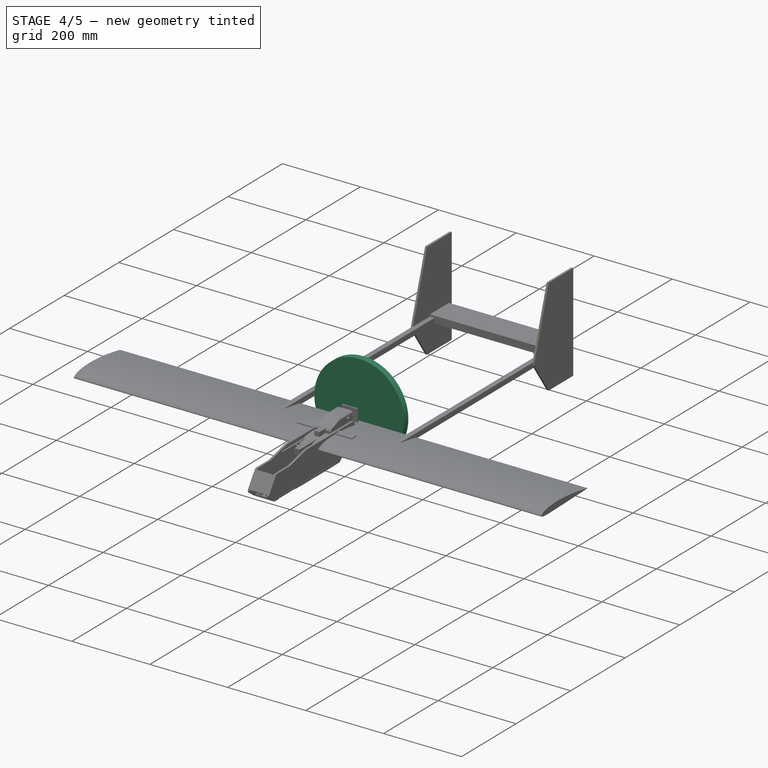
[diagram: stage 4 of 5 — iso view after this stage's code; geometry added in this stage tinted green]
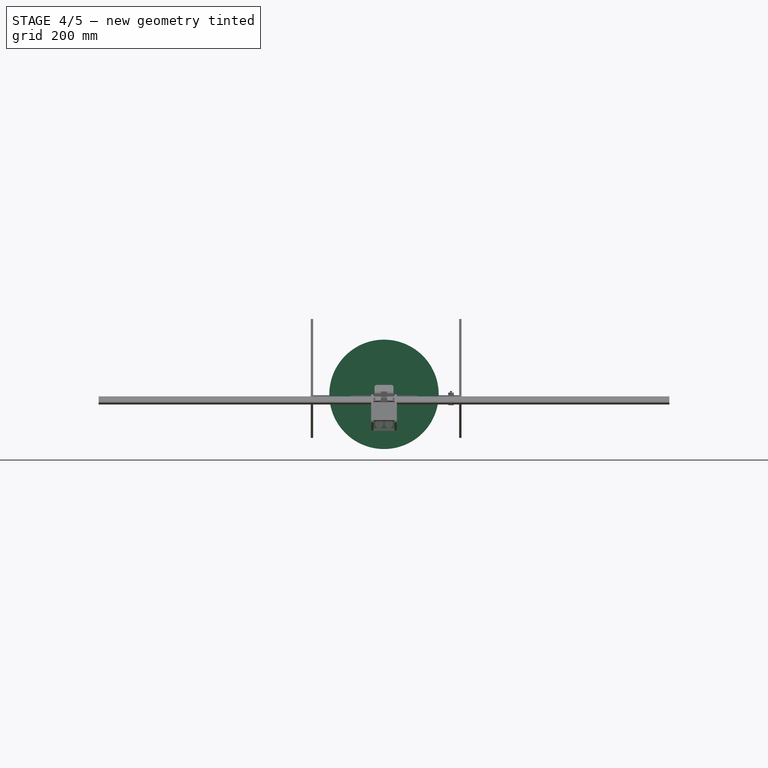
[diagram: stage 4 of 5 — front view after this stage's code; geometry added in this stage tinted green]
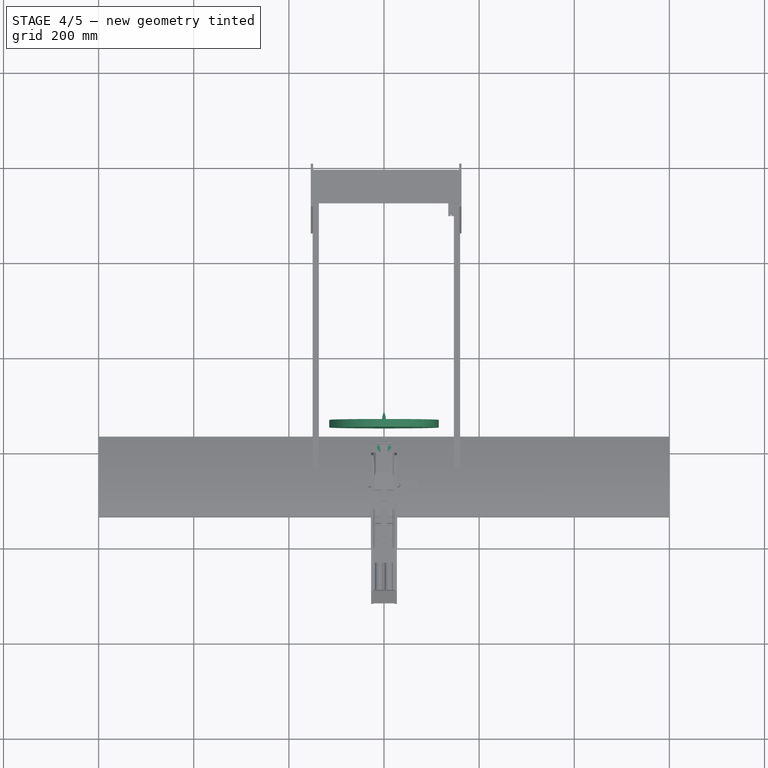
[diagram: stage 4 of 5 — top view after this stage's code; geometry added in this stage tinted green]
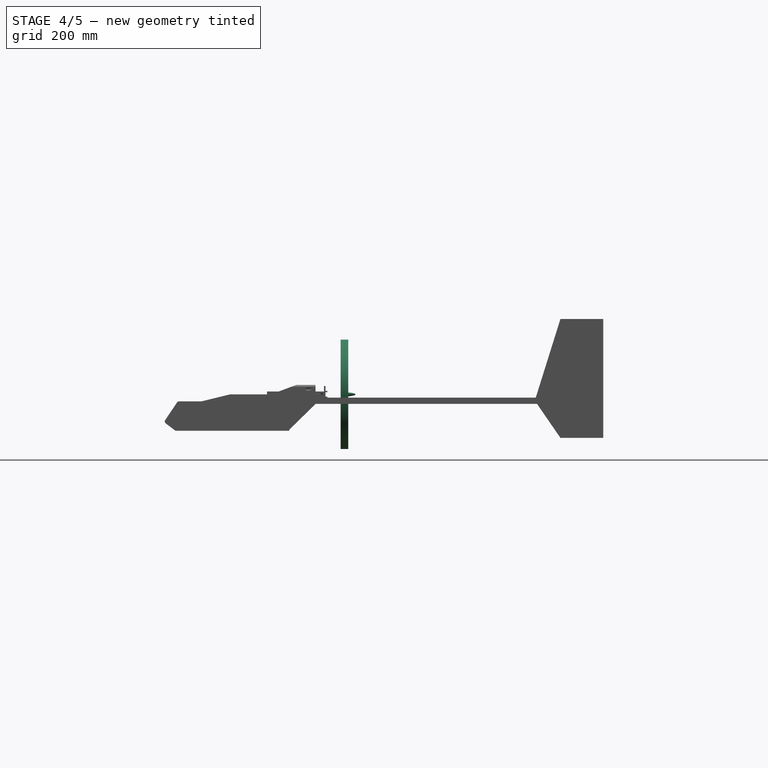
[diagram: stage 4 of 5 — right view after this stage's code; geometry added in this stage tinted green]
FEATURE [Part::Box] Box  label="Cube"
  AttacherType = Attacher::AttachEngine3D
  Height = 2
  Length = 30
  Placement = pos=(-15,-15,0) rot=(0,0,1;0rad)
  Width = 30
FEATURE [Part::Fillet] Fillet
  Base = -> Box
  Edges = 4 edges r=3.75: [Edge1,Edge3,Edge5,Edge7]
FEATURE [Part::Cut] Cut001  label="Cut002"
  Base = -> Fillet
  Tool = -> Fusion001
FEATURE [Part::Fillet] Fillet001
  Base = -> Cut001
  Edges = 8 edges r=3.5: [Edge2,Edge54,Edge57,Edge60,Edge63,Edge66,Edge69,Edge72]
FEATURE [Part::Cylinder] Cylinder001
  Angle = 360
  AttacherType = Attacher::AttachEngine3D
  Height = 10
  Radius = 4.5
FEATURE [Part::Cut] Cut002  label="Cut003"
  Base = -> Fillet001
  Tool = -> Cylinder001
FEATURE [Part::Cylinder] Cylinder004
  Angle = 360
  AttacherType = Attacher::AttachEngine3D
  Height = 10
  Placement = pos=(-6,-6,0) rot=(0,0,1;0rad)
  Radius = 1.45
FEATURE [Part::Cut] Cut003  label="Cut004"
  Base = -> Cut002
  Tool = -> Cylinder004
FEATURE [Part::Cylinder] Cylinder035
  Angle = 360
  AttacherType = Attacher::AttachEngine3D
  Height = 1
  Placement = pos=(6,0,6) rot=(1,0,0;1.5708rad)
  Radius = 2.4
FEATURE [Part::Chamfer] Chamfer005
  Base = -> Cylinder035
  Edges = 1 edges r=0.9: [Edge1]
FEATURE [Part::Cylinder] Cylinder036
  Angle = 360
  AttacherType = Attacher::AttachEngine3D
  Height = 4
  Placement = pos=(6,-1,6) rot=(1,0,0;1.5708rad)
  Radius = 1.45
FEATURE [Part::FeaturePython] Connect  label="Bolt"  # WARN: FeaturePython — macro-defined, semantics opaque (R4)
  Objects = -> [Cylinder036,Chamfer005]
  Tolerance = 0
FEATURE [Part::Cylinder] Cylinder039
  Angle = 360
  AttacherType = Attacher::AttachEngine3D
  Height = 1
  Placement = pos=(6,0,6) rot=(1,0,0;1.5708rad)
  Radius = 2.4
FEATURE [Part::Chamfer] Chamfer007
  Base = -> Cylinder039
  Edges = 1 edges r=0.9: [Edge1]
FEATURE [Part::Cylinder] Cylinder040
  Angle = 360
  AttacherType = Attacher::AttachEngine3D
  Height = 4
  Placement = pos=(6,-1,6) rot=(1,0,0;1.5708rad)
  Radius = 1.45
FEATURE [Part::FeaturePython] Connect001  label="Bolt001"  # WARN: FeaturePython — macro-defined, semantics opaque (R4)
  Objects = -> [Cylinder040,Chamfer007]
  Placement = pos=(-12,0,0) rot=(0,0,1;0rad)
  Tolerance = 0
FEATURE [Part::Cylinder] Cylinder041
  Angle = 360
  AttacherType = Attacher::AttachEngine3D
  Height = 1
  Placement = pos=(6,0,6) rot=(1,0,0;1.5708rad)
  Radius = 2.4
FEATURE [Part::Chamfer] Chamfer008
  Base = -> Cylinder041
  Edges = 1 edges r=0.9: [Edge1]
FEATURE [Part::Cylinder] Cylinder042
  Angle = 360
  AttacherType = Attacher::AttachEngine3D
  Height = 4
  Placement = pos=(6,-1,6) rot=(1,0,0;1.5708rad)
  Radius = 1.45
FEATURE [Part::FeaturePython] Connect002  label="Bolt002"  # WARN: FeaturePython — macro-defined, semantics opaque (R4)
  Objects = -> [Cylinder042,Chamfer008]
  Placement = pos=(0,0,-12) rot=(0,0,1;0rad)
  Tolerance = 0
FEATURE [Part::Cylinder] Cylinder043
  Angle = 360
  AttacherType = Attacher::AttachEngine3D
  Height = 1
  Placement = pos=(6,0,6) rot=(1,0,0;1.5708rad)
  Radius = 2.4
FEATURE [Part::Chamfer] Chamfer009
  Base = -> Cylinder043
  Edges = 1 edges r=0.9: [Edge1]
FEATURE [Part::Cylinder] Cylinder044
  Angle = 360
  AttacherType = Attacher::AttachEngine3D
  Height = 4
  Placement = pos=(6,-1,6) rot=(1,0,0;1.5708rad)
  Radius = 1.45
FEATURE [Part::FeaturePython] Connect003  label="Bolt003"  # WARN: FeaturePython — macro-defined, semantics opaque (R4)
  Objects = -> [Cylinder044,Chamfer009]
  Placement = pos=(-12,0,-12) rot=(0,0,1;0rad)
  Tolerance = 0
FEATURE [Part::Fuse] Fusion009
  Base = -> Connect
  Tool = -> Connect001
FEATURE [Part::MultiFuse] Fusion010
  Shapes = -> [Connect003,Connect002]
FEATURE [Part::MultiFuse] Fusion011  label="Bolts"
  Shapes = -> [Fusion009,Fusion010]
FEATURE [Part::FeaturePython] Clone001  label="Cut030"  # WARN: FeaturePython — macro-defined, semantics opaque (R4)
  AttacherType = Attacher::AttachEngine3D
  Fuse = false
  Placement = pos=(4,-0.3,4) rot=(0,0,1;0rad)
  Scale = (0.4,0.4,0.4)
FEATURE [Part::FeaturePython] Clone002  label="Cut031"  # Draft clone (typed FeaturePython)
  AttacherType = Attacher::AttachEngine3D
  Fuse = false
  Objects = -> [Clone001]
  Placement = pos=(-8,-0.3,4) rot=(0,0,1;0rad)
  Scale = (1,1,1)
FEATURE [Part::FeaturePython] Clone003  label="Cut032"  # Draft clone (typed FeaturePython)
  AttacherType = Attacher::AttachEngine3D
  Fuse = false
  Objects = -> [Clone002]
  Placement = pos=(-8,-0.3,-8) rot=(0,0,1;0rad)
  Scale = (1,1,1)
FEATURE [Part::FeaturePython] Clone004  label="Cut033"  # Draft clone (typed FeaturePython)
  AttacherType = Attacher::AttachEngine3D
  Fuse = false
  Objects = -> [Clone003]
  Placement = pos=(4,-0.3,-8) rot=(0,0,1;0rad)
  Scale = (1,1,1)
FEATURE [Part::Cut] Cut030  label="Cut034"
  Base = -> Fusion011
  Tool = -> Clone003
FEATURE [Part::Cut] Cut031  label="Cut035"
  Base = -> Cut030
  Tool = -> Clone001
FEATURE [Part::Cut] Cut032  label="Cut036"
  Base = -> Cut031
  Tool = -> Clone004
FEATURE [Part::Cut] Cut033  label="MountBolt"
  Base = -> Cut032
  Placement = pos=(0,20,0) rot=(1,0,0;3.14159rad)
  Tool = -> Clone002
FEATURE [Part::Cylinder] Cylinder045  label="PropellerDisk"
  Angle = 360
  AttacherType = Attacher::AttachEngine3D
  Height = 16
  Placement = pos=(0,69,0) rot=(1,0,0;1.5708rad)
  Radius = 115
FEATURE [Part::Cylinder] Cylinder046  label="Cylinder045"
  Angle = 360
  AttacherType = Attacher::AttachEngine3D
  Height = 16
  Placement = pos=(0,60,0) rot=(1,0,0;1.5708rad)
  Radius = 4
FEATURE [Part::Chamfer] Chamfer010
  Base = -> Cylinder046
  Edges = 1 edges: [Edge3 r1=6 r2=3]
FEATURE [Part::Chamfer] Chamfer011
  Base = -> Chamfer010
  Edges = 1 edges r=5: [Edge2]
FEATURE [Part::Chamfer] Chamfer012
  Base = -> Chamfer011
  Edges = 1 edges r=3: [Edge2]
FEATURE [Part::Fillet] Fillet003  label="TailCone"
  Base = -> Chamfer012
  Edges = 4 edges r=1: [Edge2,Edge5,Edge7,Edge9]
  Placement = pos=(0,24,0) rot=(0,0,1;0rad)
FEATURE [Part::Part2DObjectPython] Clone2D002  label="Wire (2D) (2D)001"  # Draft 2D object (typed FeaturePython)
  Fuse = false
  Placement = pos=(-60,2.5,0) rot=(0,0,1;0rad)
  Scale = (1,1.2,1)
FEATURE [Part::Box] Box017  label="Cube014"
  AttacherType = Attacher::AttachEngine3D
  Height = 15
  Length = 4
  Placement = pos=(-4,0,20) rot=(0,0,1;0rad)
  Width = 13
FEATURE [Part::Box] Box018  label="Cube015"
  AttacherType = Attacher::AttachEngine3D
  Height = 25
  Length = 13
  Placement = pos=(0,-2,0) rot=(0,0,1;0rad)
  Width = 15
FEATURE [Part::Extrusion] Extrude001
  Base = -> Clone2D002
  Dir = (0,0,1)
  DirMode = 2
  FaceMakerClass = Part::FaceMakerBullseye
  LengthFwd = 20
  LengthRev = 0
  Placement = pos=(0,0.4,0) rot=(0,0,1;0rad)
  Solid = false
  Symmetric = false
FEATURE [Part::Cut] Cut052  label="Cut055"
  Base = -> Extrude001
  Tool = -> Box018
FEATURE [Part::Box] Box019  label="Cube016"
  AttacherType = Attacher::AttachEngine3D
  Height = 20
  Length = 10
  Width = 10
FEATURE [Part::Chamfer] Chamfer019  label="Chamfer022"
  Base = -> Box019
  Edges = 1 edges r=9.99: [Edge7]
FEATURE [Part::FeaturePython] Clone013  label="Chamfer027"  # Draft clone (typed FeaturePython)
  AttacherType = Attacher::AttachEngine3D
  Fuse = false
  Objects = -> [Chamfer019]
  Placement = pos=(-32,2.5,0) rot=(0,0,1;0rad)
  Scale = (-2,0.8,1)
FEATURE [Part::FeaturePython] Clone011  label="Chamfer025"  # Draft clone (typed FeaturePython)
  AttacherType = Attacher::AttachEngine3D
  Fuse = false
  Objects = -> [Clone013]
  Placement = pos=(-30,2.5,0) rot=(0,0,1;0rad)
  Scale = (-1,1,1)
FEATURE [Part::FeaturePython] Clone010  label="Chamfer024"  # Draft clone (typed FeaturePython)
  AttacherType = Attacher::AttachEngine3D
  Fuse = false
  Objects = -> [Clone011]
  Placement = pos=(-10,10.5,0) rot=(0,0,1;0rad)
  Scale = (-0.8,-0.7,1)
FEATURE [Part::Cut] Cut049  label="Cut052"
  Base = -> Cut052
  Tool = -> Clone010
FEATURE [Part::Cut] Cut053  label="Cut056"
  Base = -> Cut049
  Tool = -> Clone011
FEATURE [Part::Cut] Cut047  label="Cut050"
  Base = -> Cut053
  Tool = -> Clone013
FEATURE [Part::FeaturePython] Clone012  label="Chamfer026"  # Draft clone (typed FeaturePython)
  AttacherType = Attacher::AttachEngine3D
  Fuse = false
  Objects = -> [Clone011]
  Placement = pos=(15,2.5,0) rot=(0,0,1;0rad)
  Scale = (1.3,1.2,1)
FEATURE [Part::Cut] Cut050  label="Cut053"
  Base = -> Cut047
  Tool = -> Clone012
FEATURE [Part::FeaturePython] Embed005  # WARN: FeaturePython — macro-defined, semantics opaque (R4)
  Base = -> Box017
  Tolerance = 0
  Tool = -> Cut050
FEATURE [Part::Box] Box020  label="Cube017"
  AttacherType = Attacher::AttachEngine3D
  Height = 0.1
  Length = 0.1
  Placement = pos=(-5,45,0) rot=(0,0,1;0rad)
  Width = 0.1
FEATURE [Part::Cylinder] Cylinder053
  Angle = 360
  AttacherType = Attacher::AttachEngine3D
  Height = 120
  Placement = pos=(-4.5,6.5,0) rot=(0,0,1;0rad)
  Radius = 2.7
FEATURE [Part::Cut] Cut048  label="Cut051"
  Base = -> Embed005
  Tool = -> Cylinder053
FEATURE [Part::Cut] Cut051  label="Cut054"
  Base = -> Cut048
  Tool = -> Cylinder054
FEATURE [Part::Chamfer] Chamfer020  label="Chamfer023"
  Base = -> Box021
  Edges = 1 edges r=9.99: [Edge2]
FEATURE [Part::FeaturePython] Clone014  label="Chamfer028"  # Draft clone (typed FeaturePython)
  AttacherType = Attacher::AttachEngine3D
  Fuse = false
  Objects = -> [Chamfer020]
  Placement = pos=(-1.5,11.5,0) rot=(0,0,1;0rad)
  Scale = (0.6,0.6,1)
FEATURE [Part::FeaturePython] Embed004  # WARN: FeaturePython — macro-defined, semantics opaque (R4)
  Base = -> Clone014
  Tolerance = 0
  Tool = -> Cut051
FEATURE [Part::FeaturePython] Embed003  label="Airfoil001"  # WARN: FeaturePython — macro-defined, semantics opaque (R4)
  Base = -> Chamfer020
  Placement = pos=(0,1,0) rot=(0,0,1;1.5708rad)
  Tolerance = 0
  Tool = -> Embed004
FEATURE [Part::FeaturePython] Connect008  # WARN: FeaturePython — macro-defined, semantics opaque (R4)
  Objects = -> [Embed003,Box020]
  Placement = pos=(295,-76,-20) rot=(0,1,0;1.5708rad)
  Tolerance = 0
FEATURE [Part::Mirroring] Part__Mirroring006  label="Connect008 (Mirror #7)"
  Base = (0,0,0)
  Normal = (1,0,0)
  Source = -> Connect008
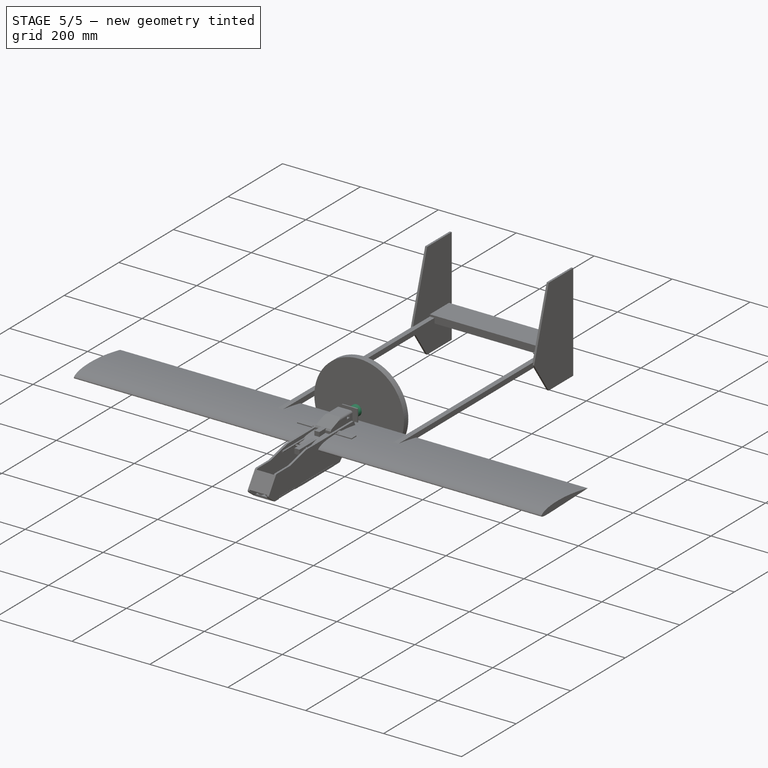
[diagram: stage 5 of 5 — iso view after this stage's code; geometry added in this stage tinted green]
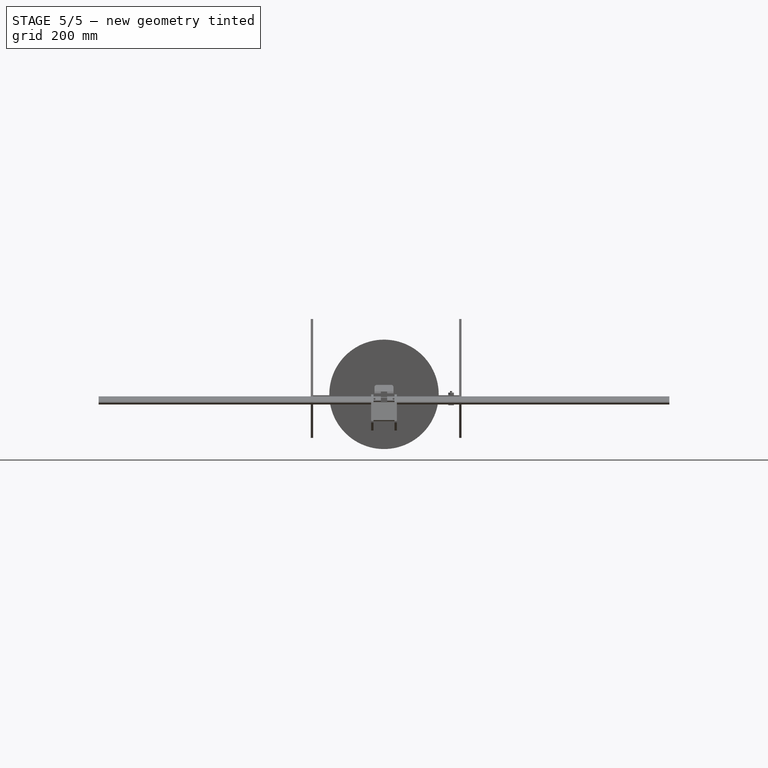
[diagram: stage 5 of 5 — front view after this stage's code; geometry added in this stage tinted green]
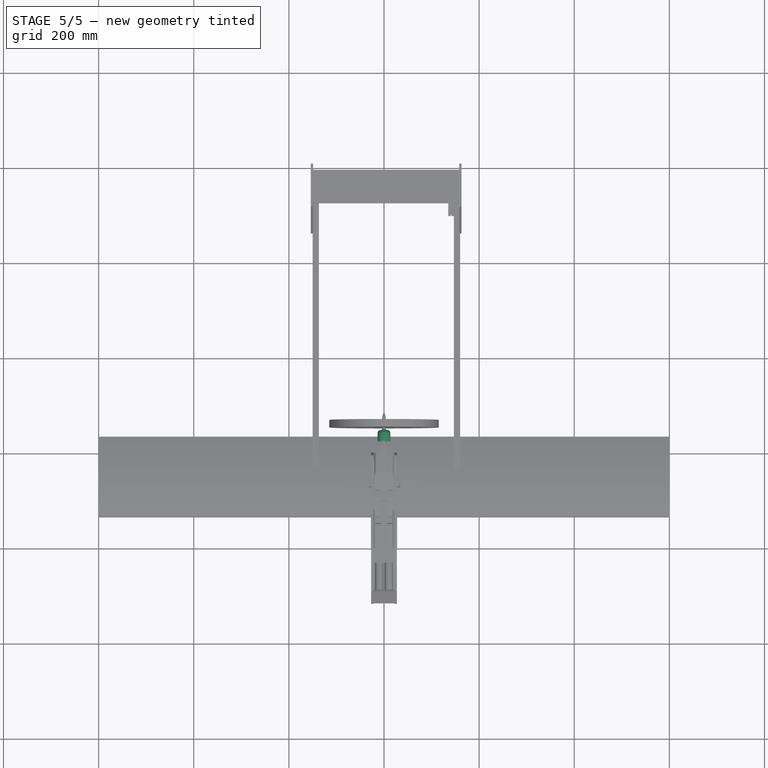
[diagram: stage 5 of 5 — top view after this stage's code; geometry added in this stage tinted green]
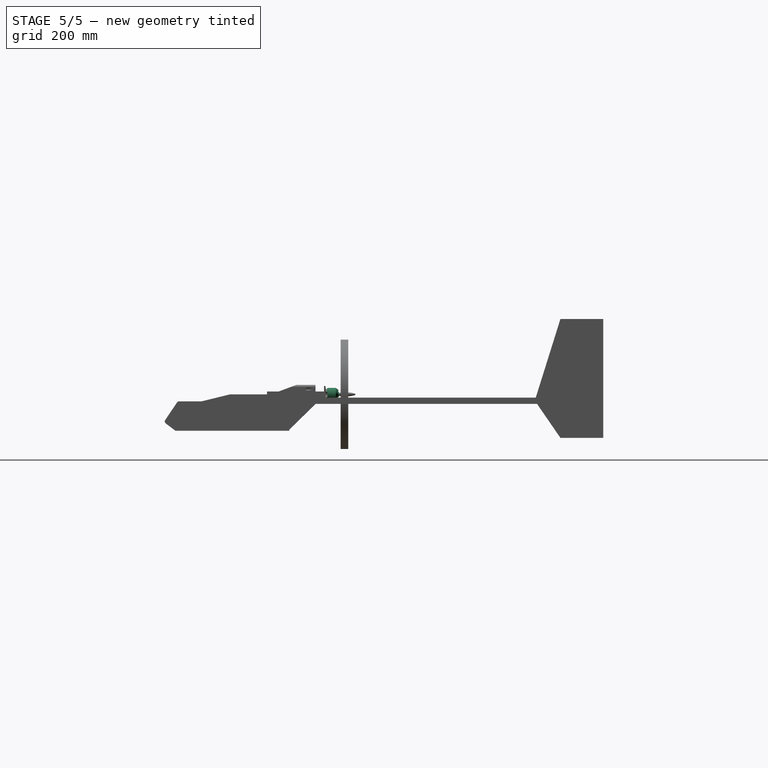
[diagram: stage 5 of 5 — right view after this stage's code; geometry added in this stage tinted green]
FEATURE [Part::Cylinder] Cylinder010
  Angle = 360
  AttacherType = Attacher::AttachEngine3D
  Height = 2
  Placement = pos=(0,0,5) rot=(0,0,1;0rad)
  Radius = 12
FEATURE [Part::Cylinder] Cylinder009
  Angle = 360
  AttacherType = Attacher::AttachEngine3D
  Height = 10
  Placement = pos=(-11.25,11.25,0) rot=(0,0,1;0rad)
  Radius = 1.45
FEATURE [Part::Cylinder] Cylinder011
  Angle = 360
  AttacherType = Attacher::AttachEngine3D
  Height = 2
  Placement = pos=(0,0,5) rot=(0,0,1;0rad)
  Radius = 13.5
FEATURE [Part::Cylinder] Cylinder002
  Angle = 360
  AttacherType = Attacher::AttachEngine3D
  Height = 10
  Placement = pos=(6,6,0) rot=(0,0,1;0rad)
  Radius = 1.45
FEATURE [Part::Cylinder] Cylinder003
  Angle = 360
  AttacherType = Attacher::AttachEngine3D
  Height = 10
  Placement = pos=(-6,6,0) rot=(0,0,1;0rad)
  Radius = 1.45
FEATURE [Part::Cylinder] Cylinder005
  Angle = 360
  AttacherType = Attacher::AttachEngine3D
  Height = 10
  Placement = pos=(6,-6,0) rot=(0,0,1;0rad)
  Radius = 1.45
FEATURE [Part::Cut] Cut004  label="Cut005"
  Base = -> Cut003
  Tool = -> Cylinder003
FEATURE [Part::Cut] Cut005  label="Cut006"
  Base = -> Cut004
  Tool = -> Cylinder002
FEATURE [Part::Cut] Cut006  label="Cut007"
  Base = -> Cut005
  Tool = -> Cylinder005
FEATURE [Part::Cylinder] Cylinder006
  Angle = 360
  AttacherType = Attacher::AttachEngine3D
  Height = 10
  Placement = pos=(11.25,-11.25,0) rot=(0,0,1;0rad)
  Radius = 1.45
FEATURE [Part::Cylinder] Cylinder007
  Angle = 360
  AttacherType = Attacher::AttachEngine3D
  Height = 10
  Placement = pos=(11.25,11.25,0) rot=(0,0,1;0rad)
  Radius = 1.45
FEATURE [Part::Cylinder] Cylinder008
  Angle = 360
  AttacherType = Attacher::AttachEngine3D
  Height = 10
  Placement = pos=(-11.25,-11.25,0) rot=(0,0,1;0rad)
  Radius = 1.45
FEATURE [Part::Cut] Cut007  label="Cut008"
  Base = -> Cut006
  Tool = -> Cylinder009
FEATURE [Part::Cut] Cut008  label="Cut009"
  Base = -> Cut007
  Tool = -> Cylinder008
FEATURE [Part::Cut] Cut009  label="Cut010"
  Base = -> Cut008
  Tool = -> Cylinder007
FEATURE [Part::Cut] Cut011  label="Stator_Cir"
  Base = -> Cylinder011
  Tool = -> Cylinder010
FEATURE [Part::Cut] Cut010  label="Mount"
  Base = -> Cut009
  Placement = pos=(0,0,0) rot=(1,0,0;1.5708rad)
  Tool = -> Cylinder006
FEATURE [Part::Cylinder] Cylinder023
  Angle = 360
  AttacherType = Attacher::AttachEngine3D
  Height = 3
  Placement = pos=(0,0,2) rot=(0,0,1;0rad)
  Radius = 13.5
FEATURE [Part::Chamfer] Chamfer003
  Base = -> Cylinder023
  Edges = 1 edges: [Edge3 r1=2.8 r2=1.2]
FEATURE [Part::Cylinder] Cylinder022
  Angle = 360
  AttacherType = Attacher::AttachEngine3D
  Height = 12
  Placement = pos=(0,0,39) rot=(0,0,1;0rad)
  Radius = 2.3
FEATURE [Part::Chamfer] Chamfer002
  Base = -> Cylinder022
  Edges = 1 edges r=0.35: [Edge1]
FEATURE [Part::Cylinder] Cylinder016
  Angle = 360
  AttacherType = Attacher::AttachEngine3D
  Height = 10
  Placement = pos=(6,-6,25) rot=(0,0,1;0rad)
  Radius = 3
FEATURE [Part::Cylinder] Cylinder013
  Angle = 360
  AttacherType = Attacher::AttachEngine3D
  Height = 26
  Radius = 12
FEATURE [Part::Fillet] Fillet002
  Base = -> Cylinder013
  Edges = 1 edges: [Edge1 r1=4.5 r2=3.5]
FEATURE [Part::Cylinder] Cylinder014
  Angle = 360
  AttacherType = Attacher::AttachEngine3D
  Height = 10
  Placement = pos=(-6,6,25) rot=(0,0,1;0rad)
  Radius = 3
FEATURE [Part::Cylinder] Cylinder019
  Angle = 360
  AttacherType = Attacher::AttachEngine3D
  Height = 10
  Placement = pos=(0,0,28) rot=(0,0,1;0rad)
  Radius = 1.5
FEATURE [Part::Cylinder] Cylinder024
  Angle = 360
  AttacherType = Attacher::AttachEngine3D
  Height = 10
  Placement = pos=(14,0,0) rot=(0,0,1;0rad)
  Radius = 6
FEATURE [Part::Cylinder] Cylinder021
  Angle = 360
  AttacherType = Attacher::AttachEngine3D
  Height = 3
  Placement = pos=(0,0,36) rot=(0,0,1;0rad)
  Radius = 2.5
FEATURE [Part::Cylinder] Cylinder015
  Angle = 360
  AttacherType = Attacher::AttachEngine3D
  Height = 10
  Placement = pos=(6,6,25) rot=(0,0,1;0rad)
  Radius = 3
FEATURE [Part::Cylinder] Cylinder026
  Angle = 360
  AttacherType = Attacher::AttachEngine3D
  Height = 10
  Placement = pos=(0,14,0) rot=(0,0,1;0rad)
  Radius = 6
FEATURE [Part::Cylinder] Cylinder030
  Angle = 360
  AttacherType = Attacher::AttachEngine3D
  Height = 3
  Placement = pos=(0,0,1.5) rot=(0,0,1;0rad)
  Radius = 2
FEATURE [Part::Cylinder] Cylinder028
  Angle = 360
  AttacherType = Attacher::AttachEngine3D
  Height = 10
  Radius = 3.5
FEATURE [Part::Cylinder] Cylinder027
  Angle = 360
  AttacherType = Attacher::AttachEngine3D
  Height = 10
  Placement = pos=(-14,0,0) rot=(0,0,1;0rad)
  Radius = 6
FEATURE [Part::Cylinder] Cylinder029
  Angle = 360
  AttacherType = Attacher::AttachEngine3D
  Height = 1.5
  Placement = pos=(0,0,2.75) rot=(0,0,1;0rad)
  Radius = 3.5
FEATURE [Part::Cylinder] Cylinder017
  Angle = 360
  AttacherType = Attacher::AttachEngine3D
  Height = 10
  Placement = pos=(-6,-6,25) rot=(0,0,1;0rad)
  Radius = 3
FEATURE [Part::Cylinder] Cylinder031
  Angle = 360
  AttacherType = Attacher::AttachEngine3D
  Height = 10
  Placement = pos=(6,6,0) rot=(0,0,1;0rad)
  Radius = 1.45
FEATURE [Part::Cylinder] Cylinder032
  Angle = 360
  AttacherType = Attacher::AttachEngine3D
  Height = 10
  Placement = pos=(6,-6,0) rot=(0,0,1;0rad)
  Radius = 1.45
FEATURE [Part::Cylinder] Cylinder033
  Angle = 360
  AttacherType = Attacher::AttachEngine3D
  Height = 10
  Placement = pos=(-6,-6,0) rot=(0,0,1;0rad)
  Radius = 1.45
FEATURE [Part::Cylinder] Cylinder034
  Angle = 360
  AttacherType = Attacher::AttachEngine3D
  Height = 10
  Placement = pos=(-6,6,0) rot=(0,0,1;0rad)
  Radius = 1.45
FEATURE [Part::Cylinder] Cylinder020
  Angle = 360
  AttacherType = Attacher::AttachEngine3D
  Height = 6
  Radius = 4
FEATURE [Part::Chamfer] Chamfer001
  Base = -> Cylinder020
  Edges = 1 edges: [Edge1 r1=5.98 r2=1.5]
  Placement = pos=(0,0,30) rot=(0,0,1;0rad)
FEATURE [Part::Fuse] Fusion003
  Base = -> Chamfer001
  Tool = -> Cylinder021
FEATURE [Part::Fuse] Fusion004
  Base = -> Cylinder019
  Tool = -> Fusion003
FEATURE [Part::Cylinder] Cylinder012
  Angle = 360
  AttacherType = Attacher::AttachEngine3D
  Height = 21
  Placement = pos=(0,0,7) rot=(0,0,1;0rad)
  Radius = 13.5
FEATURE [Part::Chamfer] Chamfer
  Base = -> Cylinder012
  Edges = 1 edges: [Edge1 r1=5 r2=4]
FEATURE [Part::Cut] Cut012  label="Cut013"
  Base = -> Chamfer
  Tool = -> Fillet002
FEATURE [Part::Cut] Cut013  label="Cut014"
  Base = -> Cut012
  Tool = -> Cylinder014
FEATURE [Part::Cut] Cut014  label="Cut015"
  Base = -> Cut013
  Tool = -> Cylinder017
FEATURE [Part::Cut] Cut015  label="Cut016"
  Base = -> Cut014
  Tool = -> Cylinder016
FEATURE [Part::Cut] Cut016  label="Cut017"
  Base = -> Cut015
  Tool = -> Cylinder015
FEATURE [Part::Cylinder] Cylinder025
  Angle = 360
  AttacherType = Attacher::AttachEngine3D
  Height = 10
  Placement = pos=(0,-14,0) rot=(0,0,1;0rad)
  Radius = 6
FEATURE [Part::Cylinder] Cylinder018
  Angle = 360
  AttacherType = Attacher::AttachEngine3D
  Height = 2
  Placement = pos=(0,0,27.5) rot=(0,0,1;0rad)
  Radius = 5
FEATURE [Part::Fuse] Fusion002  label="Rotor_main"
  Base = -> Cut016
  Placement = pos=(0,20,0) rot=(0,0.707107,0.707107;3.14159rad)
  Tool = -> Cylinder018
FEATURE [Part::Fuse] Fusion005  label="Rotor_shaft"
  Base = -> Fusion004
  Placement = pos=(0,20,0) rot=(0,0.707107,0.707107;3.14159rad)
  Tool = -> Chamfer002
FEATURE [Part::Cut] Cut017  label="Cut018"
  Base = -> Chamfer003
  Tool = -> Cylinder025
FEATURE [Part::Cut] Cut018  label="Cut019"
  Base = -> Cut017
  Tool = -> Cylinder024
FEATURE [Part::Cut] Cut019  label="Cut020"
  Base = -> Cut018
  Tool = -> Cylinder027
FEATURE [Part::Cut] Cut020  label="Cut021"
  Base = -> Cut019
  Tool = -> Cylinder026
FEATURE [Part::Cut] Cut021  label="Cut022"
  Base = -> Cut020
  Tool = -> Cylinder028
FEATURE [Part::Fuse] Fusion006  label="Bearing"
  Base = -> Cylinder029
  Tool = -> Cylinder030
FEATURE [Part::Fuse] Fusion007
  Base = -> Cut011
  Tool = -> Cut021
FEATURE [Part::Cut] Cut022  label="Cut023"
  Base = -> Fusion007
  Tool = -> Cylinder031
FEATURE [Part::Cut] Cut023  label="Cut024"
  Base = -> Cut022
  Tool = -> Cylinder034
FEATURE [Part::Cut] Cut024  label="Cut025"
  Base = -> Cut023
  Tool = -> Cylinder033
FEATURE [Part::Cut] Cut025  label="Stator_Full"
  Base = -> Cut024
  Tool = -> Cylinder032
FEATURE [Part::Fuse] Fusion008  label="Stator"
  Base = -> Fusion006
  Placement = pos=(0,20,0) rot=(0,0.707107,0.707107;3.14159rad)
  Tool = -> Cut025
FEATURE [Part::Chamfer] Chamfer004  label="AlumMount"
  Base = -> Cut010
  Edges = 4 edges r=1: [Edge79,Edge81,Edge82,Edge83]
  Placement = pos=(0,20,0) rot=(1,0,0;3.14159rad)
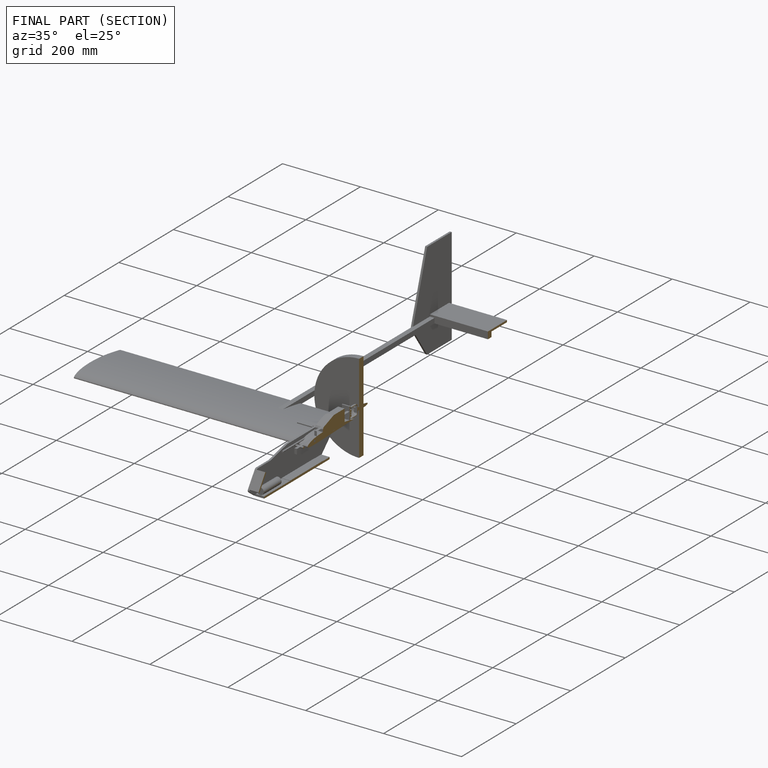
[diagram: finished part — half-section view (interior)]
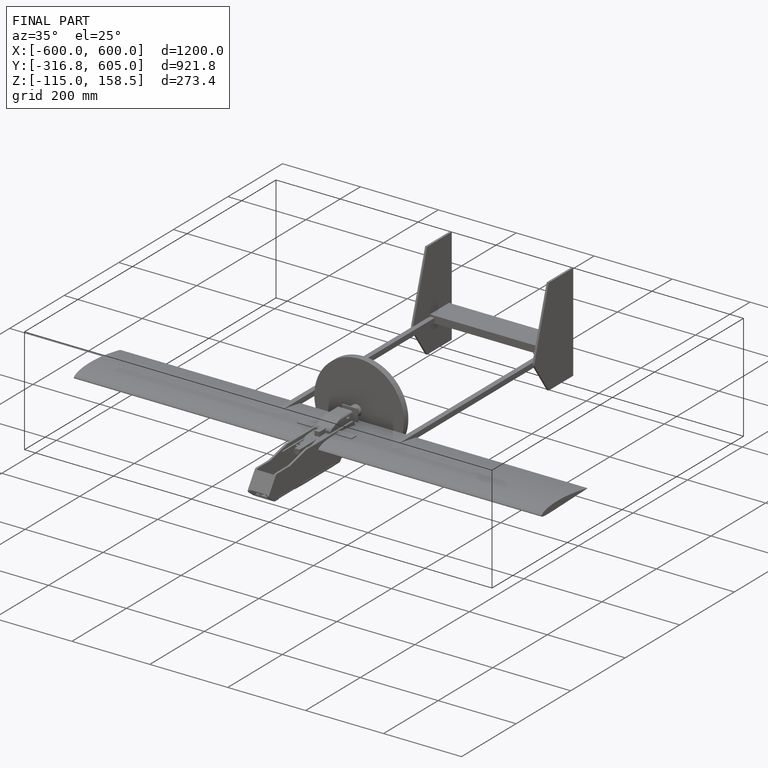
[diagram: finished part — iso view with bounding-box wireframe]
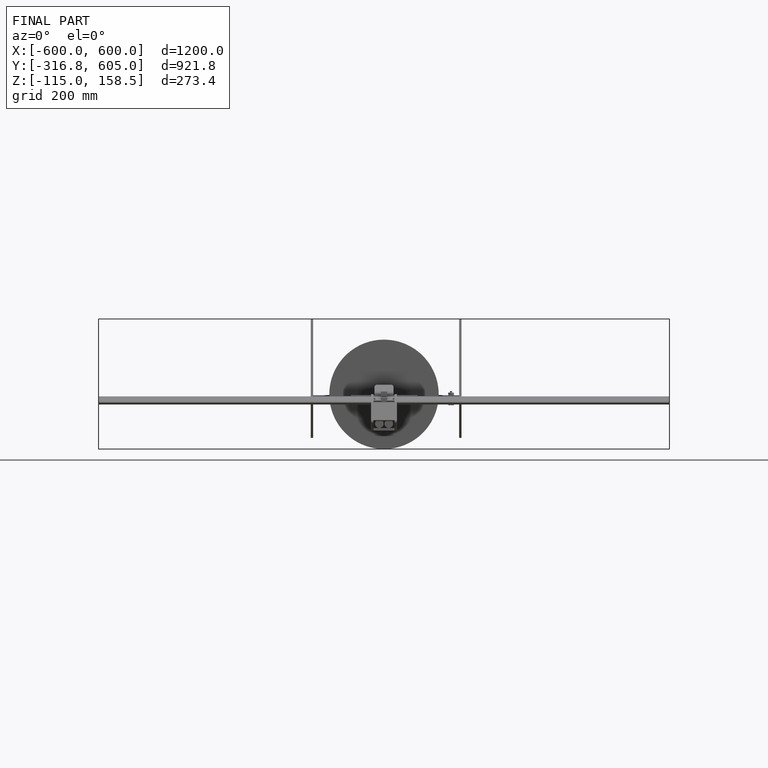
[diagram: finished part — front view with bounding-box wireframe]
